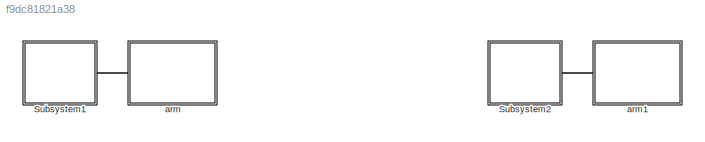
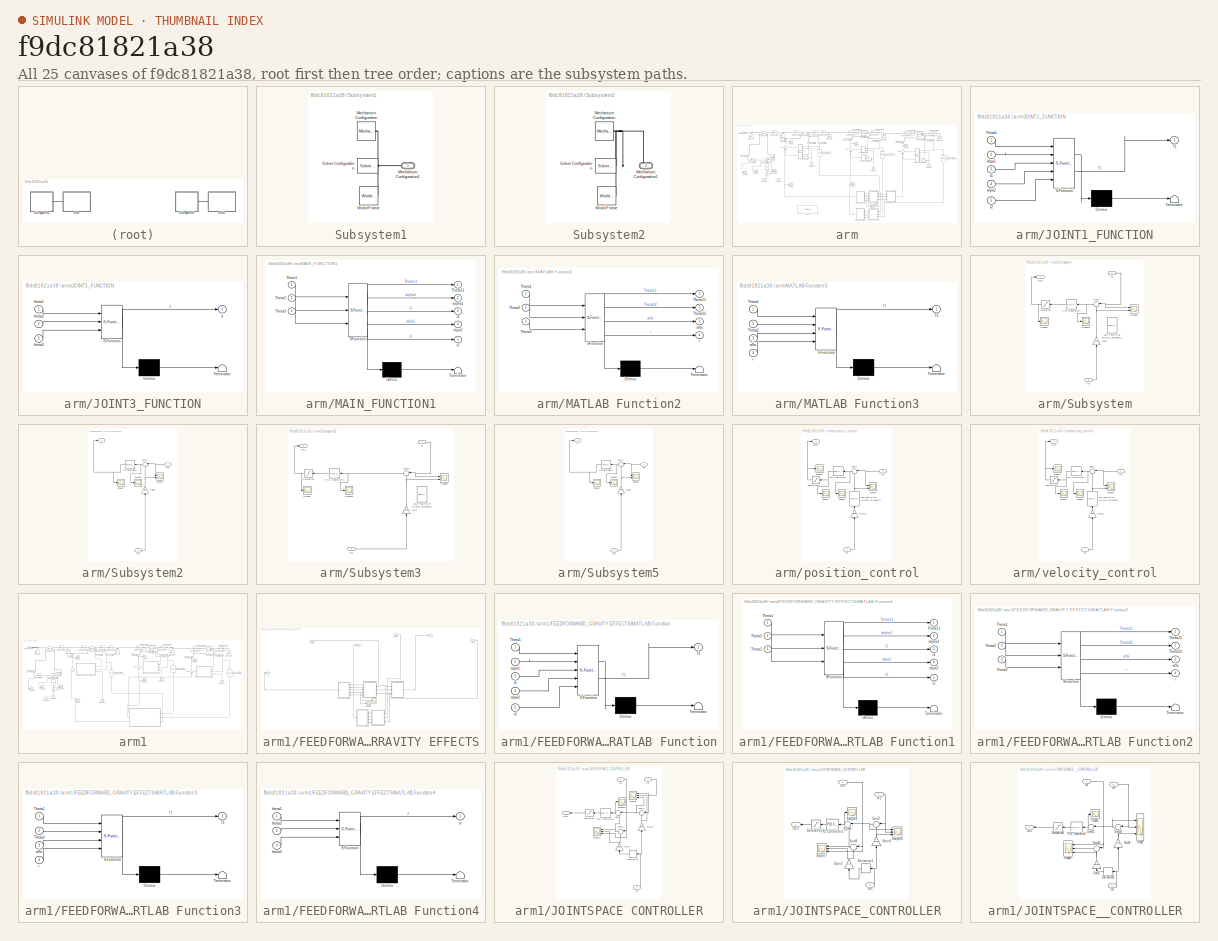
[diagram: thumbnail index - all 25 canvases of the model, root first then tree order]
MODEL slx_f9dc81821a38
KIND model
CONFIG AbsTol = auto
CONFIG EnableMultiTasking = off
CONFIG FixedStep = auto
CONFIG MaxStep = auto
CONFIG MinStep = auto
CONFIG RelTol = 1e-3
CONFIG SampleTimeConstraint = Unconstrained
CONFIG SolverName = VariableStepAuto
CONFIG StartTime = 0.0
CONFIG StopTime = 10.0
BLOCK [SubSystem] Subsystem1
  Ports = [0, 0, 0, 0, 0, 0, 1]
  RequestExecContextInheritance = off
BLOCK [Reference] Subsystem1/Mechanism Configuration  REF=sm_lib/Utilities/Mechanism
Configuration
  Ports = [0, 0, 0, 0, 0, 0, 1]
  SourceBlock = sm_lib/Utilities/Mechanism\nConfiguration
  SourceProductBaseCode = MS
  SourceType = Mechanism\nConfiguration
BLOCK [PMIOPort] Subsystem1/Mechanism Configuration1
  Side = Right
BLOCK [Reference] Subsystem1/Solver Configuration  REF=nesl_utility/Solver
Configuration
  Ports = [0, 0, 0, 0, 0, 0, 1]
  SourceBlock = nesl_utility/Solver\nConfiguration
  SourceProductBaseCode = SS
  SourceType = Solver\nConfiguration
BLOCK [Reference] Subsystem1/World Frame  REF=sm_lib/Frames and
Transforms/World Frame
  Ports = [0, 0, 0, 0, 0, 0, 1]
  SourceBlock = sm_lib/Frames and\nTransforms/World Frame
  SourceProductBaseCode = MS
  SourceType = World Frame
BLOCK [SubSystem] Subsystem2
  Commented = on
  Ports = [0, 0, 0, 0, 0, 0, 1]
  RequestExecContextInheritance = off
BLOCK [Reference] Subsystem2/Mechanism Configuration  REF=sm_lib/Utilities/Mechanism
Configuration
  Ports = [0, 0, 0, 0, 0, 0, 1]
  SourceBlock = sm_lib/Utilities/Mechanism\nConfiguration
  SourceProductBaseCode = MS
  SourceType = Mechanism\nConfiguration
BLOCK [PMIOPort] Subsystem2/Mechanism Configuration1
  Side = Right
BLOCK [Reference] Subsystem2/Solver Configuration  REF=nesl_utility/Solver
Configuration
  Ports = [0, 0, 0, 0, 0, 0, 1]
  SourceBlock = nesl_utility/Solver\nConfiguration
  SourceProductBaseCode = SS
  SourceType = Solver\nConfiguration
BLOCK [Reference] Subsystem2/World Frame  REF=sm_lib/Frames and
Transforms/World Frame
  Ports = [0, 0, 0, 0, 0, 0, 1]
  SourceBlock = sm_lib/Frames and\nTransforms/World Frame
  SourceProductBaseCode = MS
  SourceType = World Frame
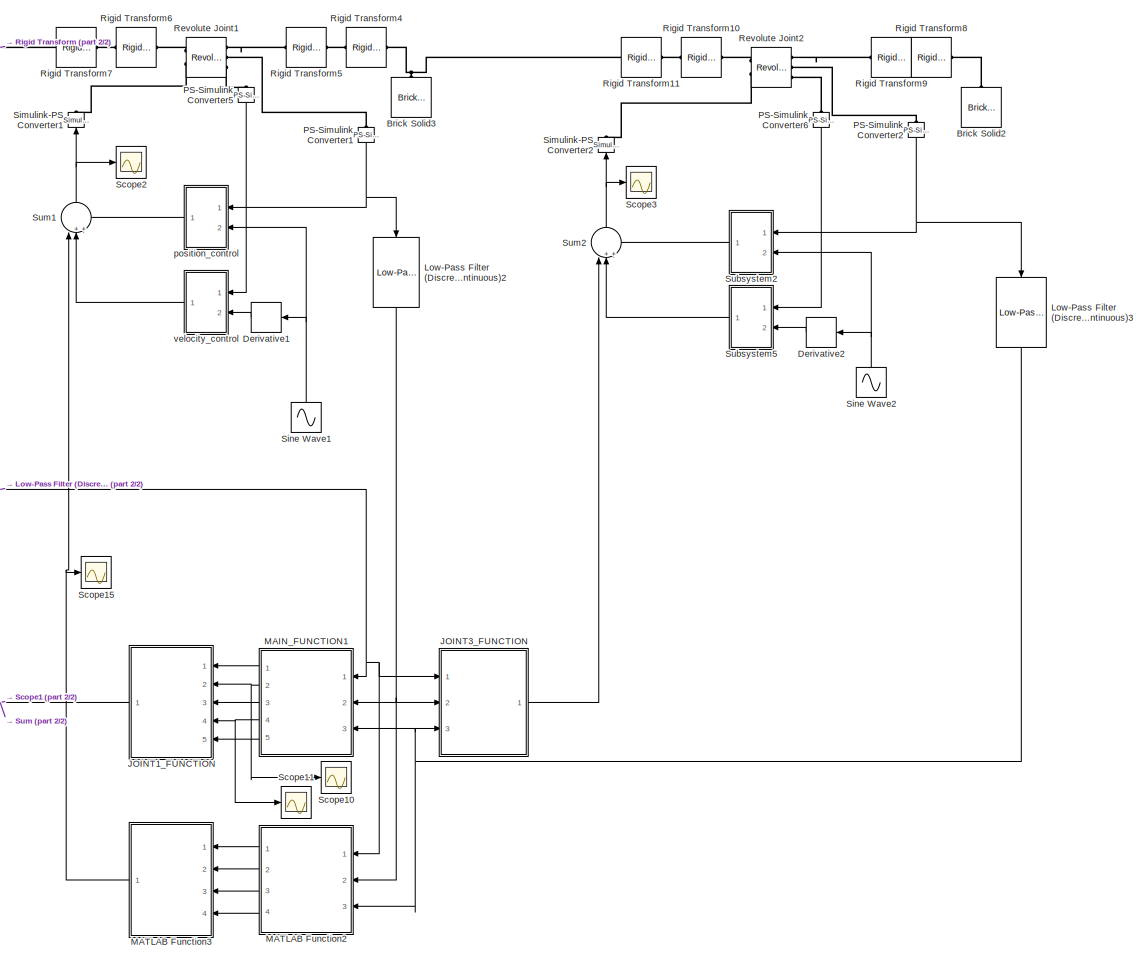
[diagram: arm - part 1/2, right side, full height]
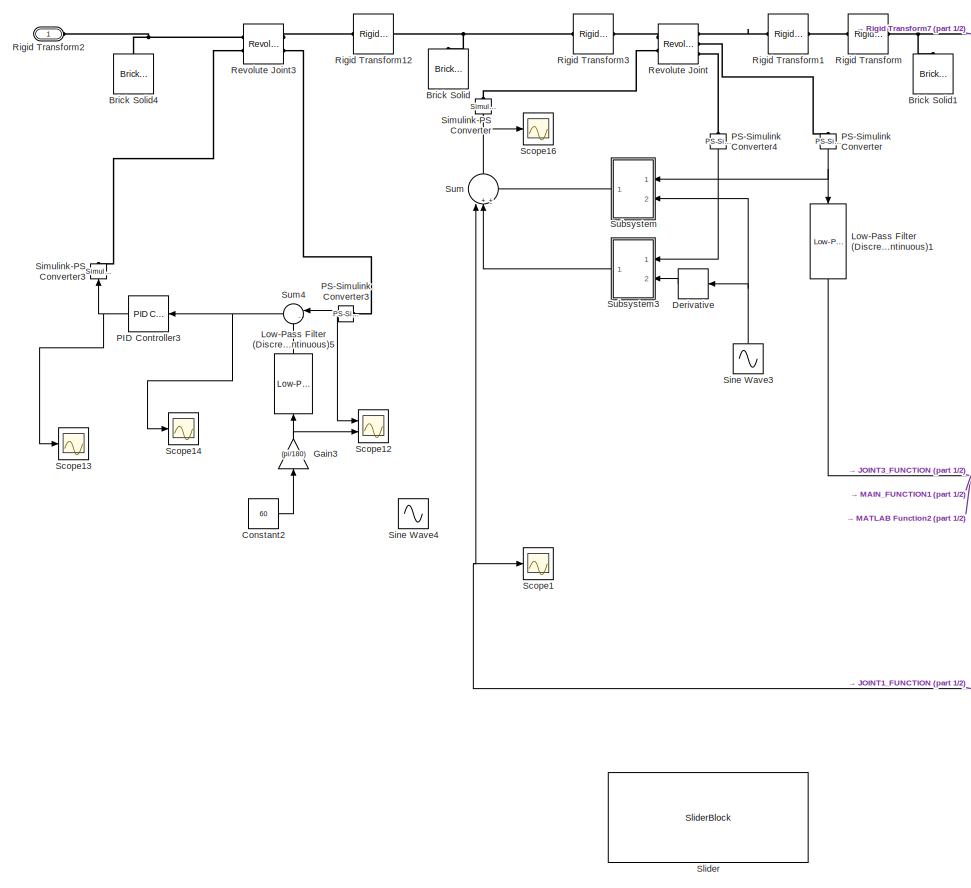
[diagram: arm - part 2/2, left side, full height]
BLOCK [SubSystem] arm
  Ports = [0, 0, 0, 0, 0, 1]
  RequestExecContextInheritance = off
BLOCK [Reference] arm/Brick Solid  REF=sm_lib/Body Elements/Brick Solid
  NameLocation = right
  Ports = [0, 0, 0, 0, 0, 0, 1]
  SourceBlock = sm_lib/Body Elements/Brick Solid
  SourceProductBaseCode = MS
  SourceType = Brick Solid
BLOCK [Reference] arm/Brick Solid1  REF=sm_lib/Body Elements/Brick Solid
  NameLocation = right
  Ports = [0, 0, 0, 0, 0, 0, 1]
  SourceBlock = sm_lib/Body Elements/Brick Solid
  SourceProductBaseCode = MS
  SourceType = Brick Solid
BLOCK [Reference] arm/Brick Solid2  REF=sm_lib/Body Elements/Brick Solid
  NameLocation = right
  Ports = [0, 0, 0, 0, 0, 0, 1]
  SourceBlock = sm_lib/Body Elements/Brick Solid
  SourceProductBaseCode = MS
  SourceType = Brick Solid
BLOCK [Reference] arm/Brick Solid3  REF=sm_lib/Body Elements/Brick Solid
  NameLocation = right
  Ports = [0, 0, 0, 0, 0, 0, 1]
  SourceBlock = sm_lib/Body Elements/Brick Solid
  SourceProductBaseCode = MS
  SourceType = Brick Solid
BLOCK [Reference] arm/Brick Solid4  REF=sm_lib/Body Elements/Brick Solid
  NameLocation = right
  Ports = [0, 0, 0, 0, 0, 0, 1]
  SourceBlock = sm_lib/Body Elements/Brick Solid
  SourceProductBaseCode = MS
  SourceType = Brick Solid
BLOCK [Constant] arm/Constant2
  Value = 60
BLOCK [Derivative] arm/Derivative
  NameLocation = top
BLOCK [Derivative] arm/Derivative1
  NameLocation = top
BLOCK [Derivative] arm/Derivative2
  NameLocation = top
BLOCK [Gain] arm/Gain3
  Gain = (pi/180)
  NameLocation = right
BLOCK [SubSystem] arm/JOINT1_FUNCTION
  ErrorFcn = Stateflow.Translate.translate
  NameLocation = top
  PermitHierarchicalResolution = ExplicitOnly
  Ports = [5, 1]
  RequestExecContextInheritance = off
  SFBlockType = MATLAB Function
  TreatAsAtomicUnit = on
BLOCK [Demux] arm/JOINT1_FUNCTION/ Demux 
  Outputs = 1
  Ports = [1, 1]
BLOCK [S-Function] arm/JOINT1_FUNCTION/ SFunction 
  EnableBusSupport = on
  FunctionName = sf_sfun
  PortCounts = [5 2]
  Ports = [5, 2]
  SFcnIsStateOwnerBlock = off
  SFunctionDeploymentMode = off
  Tag = Stateflow S-Function 2
BLOCK [Terminator] arm/JOINT1_FUNCTION/ Terminator 
BLOCK [Outport] arm/JOINT1_FUNCTION/T1
BLOCK [Inport] arm/JOINT1_FUNCTION/Theta1
BLOCK [Inport] arm/JOINT1_FUNCTION/alpa1
  Port = 2
BLOCK [Inport] arm/JOINT1_FUNCTION/alpa2
  Port = 4
BLOCK [Inport] arm/JOINT1_FUNCTION/r1
  Port = 3
BLOCK [Inport] arm/JOINT1_FUNCTION/r2
  Port = 5
BLOCK [SubSystem] arm/JOINT3_FUNCTION
  ErrorFcn = Stateflow.Translate.translate
  PermitHierarchicalResolution = ExplicitOnly
  Ports = [3, 1]
  RequestExecContextInheritance = off
  SFBlockType = MATLAB Function
  TreatAsAtomicUnit = on
BLOCK [Demux] arm/JOINT3_FUNCTION/ Demux 
  Outputs = 1
  Ports = [1, 1]
BLOCK [S-Function] arm/JOINT3_FUNCTION/ SFunction 
  EnableBusSupport = on
  FunctionName = sf_sfun
  PortCounts = [3 2]
  Ports = [3, 2]
  SFcnIsStateOwnerBlock = off
  SFunctionDeploymentMode = off
  Tag = Stateflow S-Function 5
BLOCK [Terminator] arm/JOINT3_FUNCTION/ Terminator 
BLOCK [Inport] arm/JOINT3_FUNCTION/theta1
BLOCK [Inport] arm/JOINT3_FUNCTION/theta2
  Port = 2
BLOCK [Inport] arm/JOINT3_FUNCTION/theta3
  Port = 3
BLOCK [Outport] arm/JOINT3_FUNCTION/y
BLOCK [Reference] arm/Low-Pass Filter (Discrete or Continuous)1  REF=eeGeneralControl/Low-Pass Filter
(Discrete or Continuous)
  NameLocation = left
  Ports = [1, 1]
  SourceBlock = eeGeneralControl/Low-Pass Filter\n(Discrete or Continuous)
  SourceProductBaseCode = PS
  SourceType = Low-Pass Filter (Discrete or Continuous)
BLOCK [Reference] arm/Low-Pass Filter (Discrete or Continuous)2  REF=eeGeneralControl/Low-Pass Filter
(Discrete or Continuous)
  NameLocation = left
  Ports = [1, 1]
  SourceBlock = eeGeneralControl/Low-Pass Filter\n(Discrete or Continuous)
  SourceProductBaseCode = PS
  SourceType = Low-Pass Filter (Discrete or Continuous)
BLOCK [Reference] arm/Low-Pass Filter (Discrete or Continuous)3  REF=eeGeneralControl/Low-Pass Filter
(Discrete or Continuous)
  NameLocation = left
  Ports = [1, 1]
  SourceBlock = eeGeneralControl/Low-Pass Filter\n(Discrete or Continuous)
  SourceProductBaseCode = PS
  SourceType = Low-Pass Filter (Discrete or Continuous)
BLOCK [Reference] arm/Low-Pass Filter (Discrete or Continuous)5  REF=eeGeneralControl/Low-Pass Filter
(Discrete or Continuous)
  NameLocation = right
  Ports = [1, 1]
  SourceBlock = eeGeneralControl/Low-Pass Filter\n(Discrete or Continuous)
  SourceProductBaseCode = PS
  SourceType = Low-Pass Filter (Discrete or Continuous)
BLOCK [SubSystem] arm/MAIN_FUNCTION1
  ErrorFcn = Stateflow.Translate.translate
  NameLocation = top
  PermitHierarchicalResolution = ExplicitOnly
  Ports = [3, 5]
  RequestExecContextInheritance = off
  SFBlockType = MATLAB Function
  TreatAsAtomicUnit = on
BLOCK [Demux] arm/MAIN_FUNCTION1/ Demux 
  Outputs = 1
  Ports = [1, 1]
BLOCK [S-Function] arm/MAIN_FUNCTION1/ SFunction 
  EnableBusSupport = on
  FunctionName = sf_sfun
  PortCounts = [3 6]
  Ports = [3, 6]
  SFcnIsStateOwnerBlock = off
  SFunctionDeploymentMode = off
  Tag = Stateflow S-Function 1
BLOCK [Terminator] arm/MAIN_FUNCTION1/ Terminator 
BLOCK [Inport] arm/MAIN_FUNCTION1/Theta1
BLOCK [Outport] arm/MAIN_FUNCTION1/Theta11
BLOCK [Inport] arm/MAIN_FUNCTION1/Theta2
  Port = 2
BLOCK [Inport] arm/MAIN_FUNCTION1/Theta3
  Port = 3
BLOCK [Outport] arm/MAIN_FUNCTION1/alpa2
  Port = 4
BLOCK [Outport] arm/MAIN_FUNCTION1/alpha1
  Port = 2
BLOCK [Outport] arm/MAIN_FUNCTION1/r1
  Port = 3
BLOCK [Outport] arm/MAIN_FUNCTION1/r2
  Port = 5
BLOCK [SubSystem] arm/MATLAB Function2
  ErrorFcn = Stateflow.Translate.translate
  NameLocation = top
  PermitHierarchicalResolution = ExplicitOnly
  Ports = [3, 4]
  RequestExecContextInheritance = off
  SFBlockType = MATLAB Function
  TreatAsAtomicUnit = on
BLOCK [Demux] arm/MATLAB Function2/ Demux 
  Outputs = 1
  Ports = [1, 1]
BLOCK [S-Function] arm/MATLAB Function2/ SFunction 
  EnableBusSupport = on
  FunctionName = sf_sfun
  PortCounts = [3 5]
  Ports = [3, 5]
  SFcnIsStateOwnerBlock = off
  SFunctionDeploymentMode = off
  Tag = Stateflow S-Function 3
BLOCK [Terminator] arm/MATLAB Function2/ Terminator 
BLOCK [Inport] arm/MATLAB Function2/Theta1
BLOCK [Outport] arm/MATLAB Function2/Theta11
BLOCK [Inport] arm/MATLAB Function2/Theta2
  Port = 2
BLOCK [Outport] arm/MATLAB Function2/Theta22
  Port = 2
BLOCK [Inport] arm/MATLAB Function2/Theta3
  Port = 3
BLOCK [Outport] arm/MATLAB Function2/alfa
  Port = 3
BLOCK [Outport] arm/MATLAB Function2/r
  Port = 4
BLOCK [SubSystem] arm/MATLAB Function3
  ErrorFcn = Stateflow.Translate.translate
  NameLocation = top
  PermitHierarchicalResolution = ExplicitOnly
  Ports = [4, 1]
  RequestExecContextInheritance = off
  SFBlockType = MATLAB Function
  TreatAsAtomicUnit = on
BLOCK [Demux] arm/MATLAB Function3/ Demux 
  Outputs = 1
  Ports = [1, 1]
BLOCK [S-Function] arm/MATLAB Function3/ SFunction 
  EnableBusSupport = on
  FunctionName = sf_sfun
  PortCounts = [4 2]
  Ports = [4, 2]
  SFcnIsStateOwnerBlock = off
  SFunctionDeploymentMode = off
  Tag = Stateflow S-Function 4
BLOCK [Terminator] arm/MATLAB Function3/ Terminator 
BLOCK [Outport] arm/MATLAB Function3/T1
BLOCK [Inport] arm/MATLAB Function3/Theta1
BLOCK [Inport] arm/MATLAB Function3/Theta2
  Port = 2
BLOCK [Inport] arm/MATLAB Function3/alfa
  Port = 3
BLOCK [Inport] arm/MATLAB Function3/r
  Port = 4
BLOCK [Reference] arm/PID Controller3  REF=pid_lib/PID Controller
  NameLocation = top
  Ports = [1, 1]
  SourceBlock = pid_lib/PID Controller
  SourceProductBaseCode = SL
  SourceType = PID 1dof
BLOCK [Reference] arm/PS-Simulink Converter  REF=nesl_utility/PS-Simulink
Converter
  NameLocation = left
  Ports = [0, 1, 0, 0, 0, 1]
  SourceBlock = nesl_utility/PS-Simulink\nConverter
  SourceProductBaseCode = SS
  SourceType = PS-Simulink\nConverter
BLOCK [Reference] arm/PS-Simulink Converter1  REF=nesl_utility/PS-Simulink
Converter
  NameLocation = left
  Ports = [0, 1, 0, 0, 0, 1]
  SourceBlock = nesl_utility/PS-Simulink\nConverter
  SourceProductBaseCode = SS
  SourceType = PS-Simulink\nConverter
BLOCK [Reference] arm/PS-Simulink Converter2  REF=nesl_utility/PS-Simulink
Converter
  NameLocation = left
  Ports = [0, 1, 0, 0, 0, 1]
  SourceBlock = nesl_utility/PS-Simulink\nConverter
  SourceProductBaseCode = SS
  SourceType = PS-Simulink\nConverter
BLOCK [Reference] arm/PS-Simulink Converter3  REF=nesl_utility/PS-Simulink
Converter
  NameLocation = top
  Ports = [0, 1, 0, 0, 0, 1]
  SourceBlock = nesl_utility/PS-Simulink\nConverter
  SourceProductBaseCode = SS
  SourceType = PS-Simulink\nConverter
BLOCK [Reference] arm/PS-Simulink Converter4  REF=nesl_utility/PS-Simulink
Converter
  NameLocation = left
  Ports = [0, 1, 0, 0, 0, 1]
  SourceBlock = nesl_utility/PS-Simulink\nConverter
  SourceProductBaseCode = SS
  SourceType = PS-Simulink\nConverter
BLOCK [Reference] arm/PS-Simulink Converter5  REF=nesl_utility/PS-Simulink
Converter
  NameLocation = left
  Ports = [0, 1, 0, 0, 0, 1]
  SourceBlock = nesl_utility/PS-Simulink\nConverter
  SourceProductBaseCode = SS
  SourceType = PS-Simulink\nConverter
BLOCK [Reference] arm/PS-Simulink Converter6  REF=nesl_utility/PS-Simulink
Converter
  NameLocation = left
  Ports = [0, 1, 0, 0, 0, 1]
  SourceBlock = nesl_utility/PS-Simulink\nConverter
  SourceProductBaseCode = SS
  SourceType = PS-Simulink\nConverter
BLOCK [Reference] arm/Revolute Joint  REF=sm_lib/Joints/Revolute Joint
  Ports = [0, 0, 0, 0, 0, 2, 3]
  SourceBlock = sm_lib/Joints/Revolute Joint
  SourceProductBaseCode = MS
  SourceType = Revolute Joint
BLOCK [Reference] arm/Revolute Joint1  REF=sm_lib/Joints/Revolute Joint
  Ports = [0, 0, 0, 0, 0, 2, 3]
  SourceBlock = sm_lib/Joints/Revolute Joint
  SourceProductBaseCode = MS
  SourceType = Revolute Joint
BLOCK [Reference] arm/Revolute Joint2  REF=sm_lib/Joints/Revolute Joint
  Ports = [0, 0, 0, 0, 0, 2, 3]
  SourceBlock = sm_lib/Joints/Revolute Joint
  SourceProductBaseCode = MS
  SourceType = Revolute Joint
BLOCK [Reference] arm/Revolute Joint3  REF=sm_lib/Joints/Revolute Joint
  Ports = [0, 0, 0, 0, 0, 2, 2]
  SourceBlock = sm_lib/Joints/Revolute Joint
  SourceProductBaseCode = MS
  SourceType = Revolute Joint
BLOCK [Reference] arm/Rigid Transform  REF=sm_lib/Frames and
Transforms/Rigid
Transform
  Ports = [0, 0, 0, 0, 0, 1, 1]
  SourceBlock = sm_lib/Frames and\nTransforms/Rigid\nTransform
  SourceProductBaseCode = MS
  SourceType = Rigid\nTransform
BLOCK [Reference] arm/Rigid Transform1  REF=sm_lib/Frames and
Transforms/Rigid
Transform
  Ports = [0, 0, 0, 0, 0, 1, 1]
  SourceBlock = sm_lib/Frames and\nTransforms/Rigid\nTransform
  SourceProductBaseCode = MS
  SourceType = Rigid\nTransform
BLOCK [Reference] arm/Rigid Transform10  REF=sm_lib/Frames and
Transforms/Rigid
Transform
  Ports = [0, 0, 0, 0, 0, 1, 1]
  SourceBlock = sm_lib/Frames and\nTransforms/Rigid\nTransform
  SourceProductBaseCode = MS
  SourceType = Rigid\nTransform
BLOCK [Reference] arm/Rigid Transform11  REF=sm_lib/Frames and
Transforms/Rigid
Transform
  Ports = [0, 0, 0, 0, 0, 1, 1]
  SourceBlock = sm_lib/Frames and\nTransforms/Rigid\nTransform
  SourceProductBaseCode = MS
  SourceType = Rigid\nTransform
BLOCK [Reference] arm/Rigid Transform12  REF=sm_lib/Frames and
Transforms/Rigid
Transform
  Ports = [0, 0, 0, 0, 0, 1, 1]
  SourceBlock = sm_lib/Frames and\nTransforms/Rigid\nTransform
  SourceProductBaseCode = MS
  SourceType = Rigid\nTransform
BLOCK [PMIOPort] arm/Rigid Transform2
  Side = Left
BLOCK [Reference] arm/Rigid Transform3  REF=sm_lib/Frames and
Transforms/Rigid
Transform
  Ports = [0, 0, 0, 0, 0, 1, 1]
  SourceBlock = sm_lib/Frames and\nTransforms/Rigid\nTransform
  SourceProductBaseCode = MS
  SourceType = Rigid\nTransform
BLOCK [Reference] arm/Rigid Transform4  REF=sm_lib/Frames and
Transforms/Rigid
Transform
  Ports = [0, 0, 0, 0, 0, 1, 1]
  SourceBlock = sm_lib/Frames and\nTransforms/Rigid\nTransform
  SourceProductBaseCode = MS
  SourceType = Rigid\nTransform
BLOCK [Reference] arm/Rigid Transform5  REF=sm_lib/Frames and
Transforms/Rigid
Transform
  Ports = [0, 0, 0, 0, 0, 1, 1]
  SourceBlock = sm_lib/Frames and\nTransforms/Rigid\nTransform
  SourceProductBaseCode = MS
  SourceType = Rigid\nTransform
BLOCK [Reference] arm/Rigid Transform6  REF=sm_lib/Frames and
Transforms/Rigid
Transform
  Ports = [0, 0, 0, 0, 0, 1, 1]
  SourceBlock = sm_lib/Frames and\nTransforms/Rigid\nTransform
  SourceProductBaseCode = MS
  SourceType = Rigid\nTransform
BLOCK [Reference] arm/Rigid Transform7  REF=sm_lib/Frames and
Transforms/Rigid
Transform
  Ports = [0, 0, 0, 0, 0, 1, 1]
  SourceBlock = sm_lib/Frames and\nTransforms/Rigid\nTransform
  SourceProductBaseCode = MS
  SourceType = Rigid\nTransform
BLOCK [Reference] arm/Rigid Transform8  REF=sm_lib/Frames and
Transforms/Rigid
Transform
  Ports = [0, 0, 0, 0, 0, 1, 1]
  SourceBlock = sm_lib/Frames and\nTransforms/Rigid\nTransform
  SourceProductBaseCode = MS
  SourceType = Rigid\nTransform
BLOCK [Reference] arm/Rigid Transform9  REF=sm_lib/Frames and
Transforms/Rigid
Transform
  Ports = [0, 0, 0, 0, 0, 1, 1]
  SourceBlock = sm_lib/Frames and\nTransforms/Rigid\nTransform
  SourceProductBaseCode = MS
  SourceType = Rigid\nTransform
BLOCK [Scope] arm/Scope1
  Floating = off
  NumInputPorts = 1
  Ports = [1]
  ScopeSpecificationString = Simulink.scopes.TimeScopeBlockCfg('CurrentConfiguration', extmgr.ConfigurationSet(extmgr.Configuration('Core','General UI',true),extmgr.Configuration('Core','Source UI',true),extmgr.Configuration('Sources','WiredSimulink',true,'DataLoggingVariableName','ScopeData1'),extmgr.Configuration('Visuals','Time Domain',true,'SerializedDisplays',{struct('MinYLimReal','-97.78907','MaxYLimReal','122.15234','Y...<+1461ch>
BLOCK [Scope] arm/Scope10
  Floating = off
  NumInputPorts = 1
  Ports = [1]
  ScopeSpecificationString = Simulink.scopes.TimeScopeBlockCfg('CurrentConfiguration', extmgr.ConfigurationSet(extmgr.Configuration('Core','General UI',true),extmgr.Configuration('Core','Source UI',true),extmgr.Configuration('Sources','WiredSimulink',true,'DataLoggingVariableName','ScopeData3'),extmgr.Configuration('Visuals','Time Domain',true,'SerializedDisplays',{struct('MinYLimReal','-0.08716','MaxYLimReal','0.78411','YLab...<+1413ch>
BLOCK [Scope] arm/Scope11
  Floating = off
  NumInputPorts = 1
  Ports = [1]
  ScopeSpecificationString = Simulink.scopes.TimeScopeBlockCfg('CurrentConfiguration', extmgr.ConfigurationSet(extmgr.Configuration('Core','General UI',true),extmgr.Configuration('Core','Source UI',true),extmgr.Configuration('Sources','WiredSimulink',true,'DataLoggingVariableName','ScopeData4'),extmgr.Configuration('Visuals','Time Domain',true,'SerializedDisplays',{struct('MinYLimReal','-0.10489','MaxYLimReal','0.94401','YLab...<+1412ch>
BLOCK [Scope] arm/Scope12
  Floating = off
  NumInputPorts = 2
  Ports = [2]
  ScopeSpecificationString = Simulink.scopes.TimeScopeBlockCfg('CurrentConfiguration', extmgr.ConfigurationSet(extmgr.Configuration('Core','General UI',true),extmgr.Configuration('Core','Source UI',true),extmgr.Configuration('Sources','WiredSimulink',true,'DataLoggingVariableName','ScopeData2'),extmgr.Configuration('Visuals','Time Domain',true,'SerializedDisplays',{struct('MinYLimReal','-2.43164','MaxYLimReal','2.24908','YLab...<+1470ch>
BLOCK [Scope] arm/Scope13
  Floating = off
  NumInputPorts = 1
  Ports = [1]
  ScopeSpecificationString = Simulink.scopes.TimeScopeBlockCfg('CurrentConfiguration', extmgr.ConfigurationSet(extmgr.Configuration('Core','General UI',true),extmgr.Configuration('Core','Source UI',true),extmgr.Configuration('Sources','WiredSimulink',true,'DataLoggingVariableName','ScopeData3'),extmgr.Configuration('Visuals','Time Domain',true,'SerializedDisplays',{struct('MinYLimReal','-105.42906','MaxYLimReal','1824.76918',...<+1442ch>
BLOCK [Scope] arm/Scope14
  Floating = off
  NumInputPorts = 1
  Ports = [1]
  ScopeSpecificationString = Simulink.scopes.TimeScopeBlockCfg('CurrentConfiguration', extmgr.ConfigurationSet(extmgr.Configuration('Core','General UI',true),extmgr.Configuration('Core','Source UI',true),extmgr.Configuration('Sources','WiredSimulink',true,'DataLoggingVariableName','ScopeData4'),extmgr.Configuration('Visuals','Time Domain',true,'SerializedDisplays',{struct('MinYLimReal','-0.71157','MaxYLimReal','0.46619','YLab...<+1396ch>
BLOCK [Scope] arm/Scope15
  Floating = off
  NumInputPorts = 1
  Ports = [1]
  ScopeSpecificationString = Simulink.scopes.TimeScopeBlockCfg('CurrentConfiguration', extmgr.ConfigurationSet(extmgr.Configuration('Core','General UI',true),extmgr.Configuration('Core','Source UI',true),extmgr.Configuration('Sources','WiredSimulink',true,'DataLoggingVariableName','ScopeData5'),extmgr.Configuration('Visuals','Time Domain',true,'SerializedDisplays',{struct('MinYLimReal','-84.16932','MaxYLimReal','58.59398','YL...<+1431ch>
BLOCK [Scope] arm/Scope16
  Floating = off
  NumInputPorts = 1
  Ports = [1]
  ScopeSpecificationString = Simulink.scopes.TimeScopeBlockCfg('CurrentConfiguration', extmgr.ConfigurationSet(extmgr.Configuration('Core','General UI',true),extmgr.Configuration('Core','Source UI',true),extmgr.Configuration('Sources','WiredSimulink',true,'DataLoggingVariableName','ScopeData2'),extmgr.Configuration('Visuals','Time Domain',true,'SerializedDisplays',{struct('MinYLimReal','-55.10704','MaxYLimReal','94.41094','YL...<+1416ch>
BLOCK [Scope] arm/Scope2
  Floating = off
  NumInputPorts = 1
  Ports = [1]
  ScopeSpecificationString = Simulink.scopes.TimeScopeBlockCfg('CurrentConfiguration', extmgr.ConfigurationSet(extmgr.Configuration('Core','General UI',true),extmgr.Configuration('Core','Source UI',true),extmgr.Configuration('Sources','WiredSimulink',true,'DataLoggingVariableName','ScopeData1'),extmgr.Configuration('Visuals','Time Domain',true,'SerializedDisplays',{struct('MinYLimReal','-19.29694','MaxYLimReal','21.51342','YL...<+1417ch>
BLOCK [Scope] arm/Scope3
  Floating = off
  NumInputPorts = 1
  Ports = [1]
  ScopeSpecificationString = Simulink.scopes.TimeScopeBlockCfg('CurrentConfiguration', extmgr.ConfigurationSet(extmgr.Configuration('Core','General UI',true),extmgr.Configuration('Core','Source UI',true),extmgr.Configuration('Sources','WiredSimulink',true,'DataLoggingVariableName','ScopeData2'),extmgr.Configuration('Visuals','Time Domain',true,'SerializedDisplays',{struct('MinYLimReal','-46.30671','MaxYLimReal','146.9352','YL...<+1417ch>
BLOCK [Reference] arm/Simulink-PS Converter  REF=nesl_utility/Simulink-PS
Converter
  NameLocation = right
  Ports = [1, 0, 0, 0, 0, 0, 1]
  SourceBlock = nesl_utility/Simulink-PS\nConverter
  SourceProductBaseCode = SS
  SourceType = Simulink-PS\nConverter
BLOCK [Reference] arm/Simulink-PS Converter1  REF=nesl_utility/Simulink-PS
Converter
  NameLocation = right
  Ports = [1, 0, 0, 0, 0, 0, 1]
  SourceBlock = nesl_utility/Simulink-PS\nConverter
  SourceProductBaseCode = SS
  SourceType = Simulink-PS\nConverter
BLOCK [Reference] arm/Simulink-PS Converter2  REF=nesl_utility/Simulink-PS
Converter
  NameLocation = right
  Ports = [1, 0, 0, 0, 0, 0, 1]
  SourceBlock = nesl_utility/Simulink-PS\nConverter
  SourceProductBaseCode = SS
  SourceType = Simulink-PS\nConverter
BLOCK [Reference] arm/Simulink-PS Converter3  REF=nesl_utility/Simulink-PS
Converter
  NameLocation = right
  Ports = [1, 0, 0, 0, 0, 0, 1]
  SourceBlock = nesl_utility/Simulink-PS\nConverter
  SourceProductBaseCode = SS
  SourceType = Simulink-PS\nConverter
BLOCK [Sin] arm/Sine Wave1
  Amplitude = 60
  Frequency = .1*6*pi
  NameLocation = right
  Phase = 10
  Ports = [0, 1]
  SampleTime = 0
BLOCK [Sin] arm/Sine Wave2
  Amplitude = 90
  Frequency = .1*3*pi
  NameLocation = right
  Phase = 60
  Ports = [0, 1]
  SampleTime = 0
BLOCK [Sin] arm/Sine Wave3
  Amplitude = 60
  Frequency = .1*2*pi
  NameLocation = right
  Ports = [0, 1]
  SampleTime = 0
BLOCK [Sin] arm/Sine Wave4
  Amplitude = 20
  Frequency = .1*4*pi
  NameLocation = right
  Phase = 10
  Ports = [0, 1]
  SampleTime = 0
BLOCK [SliderBlock] arm/Slider
  ScaleMax = 180
  ScaleMin = -180
BLOCK [SubSystem] arm/Subsystem
  NameLocation = top
  Ports = [2, 1]
  RequestExecContextInheritance = off
BLOCK [Gain] arm/Subsystem/Gain
  Gain = (pi/180)
  NameLocation = right
BLOCK [Inport] arm/Subsystem/In1
BLOCK [Inport] arm/Subsystem/In2
  Port = 2
BLOCK [Reference] arm/Subsystem/Low-Pass Filter (Discrete or Continuous)1  REF=eeGeneralControl/Low-Pass Filter
(Discrete or Continuous)
  NameLocation = right
  Ports = [1, 1]
  SourceBlock = eeGeneralControl/Low-Pass Filter\n(Discrete or Continuous)
  SourceProductBaseCode = PS
  SourceType = Low-Pass Filter (Discrete or Continuous)
BLOCK [Outport] arm/Subsystem/Out1
BLOCK [Reference] arm/Subsystem/PID Controller4  REF=pid_lib/PID Controller
  NameLocation = top
  Ports = [1, 1]
  SourceBlock = pid_lib/PID Controller
  SourceProductBaseCode = SL
  SourceType = PID 1dof
BLOCK [Saturate] arm/Subsystem/Saturation
  LowerLimit = -50
  NameLocation = top
  UpperLimit = 50
BLOCK [Scope] arm/Subsystem/Scope18
  Floating = off
  NumInputPorts = 1
  Ports = [1]
  ScopeSpecificationString = Simulink.scopes.TimeScopeBlockCfg('CurrentConfiguration', extmgr.ConfigurationSet(extmgr.Configuration('Core','General UI',true),extmgr.Configuration('Core','Source UI',true),extmgr.Configuration('Sources','WiredSimulink',true,'DataLoggingVariableName','ScopeData4'),extmgr.Configuration('Visuals','Time Domain',true,'SerializedDisplays',{struct('MinYLimReal','-28.70324','MaxYLimReal','215.04775','Y...<+1421ch>
BLOCK [Scope] arm/Subsystem/Scope2
  Floating = off
  NumInputPorts = 2
  Ports = [2]
  ScopeSpecificationString = Simulink.scopes.TimeScopeBlockCfg('CurrentConfiguration', extmgr.ConfigurationSet(extmgr.Configuration('Core','General UI',true),extmgr.Configuration('Core','Source UI',true),extmgr.Configuration('Sources','WiredSimulink',true,'DataLoggingVariableName','ScopeData1'),extmgr.Configuration('Visuals','Time Domain',true,'SerializedDisplays',{struct('MinYLimReal','-1.2812','MaxYLimReal','1.88003','YLabe...<+1415ch>
BLOCK [Scope] arm/Subsystem/Scope9
  Floating = off
  NumInputPorts = 1
  Ports = [1]
  ScopeSpecificationString = Simulink.scopes.TimeScopeBlockCfg('CurrentConfiguration', extmgr.ConfigurationSet(extmgr.Configuration('Core','General UI',true),extmgr.Configuration('Core','Source UI',true),extmgr.Configuration('Sources','WiredSimulink',true,'DataLoggingVariableName','ScopeData1'),extmgr.Configuration('Visuals','Time Domain',true,'SerializedDisplays',{struct('MinYLimReal','-240.27598','MaxYLimReal','358.95421','...<+1431ch>
BLOCK [Sum] arm/Subsystem/Sum6
  Inputs = |-+
  NameLocation = top
  Ports = [2, 1]
BLOCK [SubSystem] arm/Subsystem2
  NameLocation = top
  Ports = [2, 1]
  RequestExecContextInheritance = off
BLOCK [Gain] arm/Subsystem2/Gain2
  Gain = (pi/180)
  NameLocation = right
BLOCK [Inport] arm/Subsystem2/In1
BLOCK [Inport] arm/Subsystem2/In2
  Port = 2
BLOCK [Reference] arm/Subsystem2/PID Controller2  REF=pid_lib/PID Controller
  NameLocation = top
  Ports = [1, 1]
  SourceBlock = pid_lib/PID Controller
  SourceProductBaseCode = SL
  SourceType = PID 1dof
BLOCK [Scope] arm/Subsystem2/Scope6
  Floating = off
  NumInputPorts = 2
  Ports = [2]
  ScopeSpecificationString = Simulink.scopes.TimeScopeBlockCfg('CurrentConfiguration', extmgr.ConfigurationSet(extmgr.Configuration('Core','General UI',true),extmgr.Configuration('Core','Source UI',true),extmgr.Configuration('Sources','WiredSimulink',true,'DataLoggingVariableName','ScopeData6'),extmgr.Configuration('Visuals','Time Domain',true,'SerializedDisplays',{struct('MinYLimReal','-1.98091','MaxYLimReal','2.09791','YLab...<+1401ch>
BLOCK [Scope] arm/Subsystem2/Scope7
  Floating = off
  NumInputPorts = 1
  Ports = [1]
  ScopeSpecificationString = Simulink.scopes.TimeScopeBlockCfg('CurrentConfiguration', extmgr.ConfigurationSet(extmgr.Configuration('Core','General UI',true),extmgr.Configuration('Core','Source UI',true),extmgr.Configuration('Sources','WiredSimulink',true,'DataLoggingVariableName','ScopeData7'),extmgr.Configuration('Visuals','Time Domain',true,'SerializedDisplays',{struct('MinYLimReal','-64.4437','MaxYLimReal','41.05175','YLa...<+1426ch>
BLOCK [Scope] arm/Subsystem2/Scope8
  Floating = off
  NumInputPorts = 1
  Ports = [1]
  ScopeSpecificationString = Simulink.scopes.TimeScopeBlockCfg('CurrentConfiguration', extmgr.ConfigurationSet(extmgr.Configuration('Core','General UI',true),extmgr.Configuration('Core','Source UI',true),extmgr.Configuration('Sources','WiredSimulink',true,'DataLoggingVariableName','ScopeData8'),extmgr.Configuration('Visuals','Time Domain',true,'SerializedDisplays',{struct('MinYLimReal','-1.07676','MaxYLimReal','3.22756','YLab...<+1394ch>
BLOCK [Sum] arm/Subsystem2/Sum2
  Inputs = |-+
  NameLocation = top
  Ports = [2, 1]
BLOCK [Outport] arm/Subsystem2/y
BLOCK [SubSystem] arm/Subsystem3
  NameLocation = top
  Ports = [2, 1]
  RequestExecContextInheritance = off
BLOCK [Gain] arm/Subsystem3/Gain
  Gain = (pi/180)
  NameLocation = right
BLOCK [Inport] arm/Subsystem3/In1
BLOCK [Inport] arm/Subsystem3/In2
  Port = 2
BLOCK [Reference] arm/Subsystem3/Low-Pass Filter (Discrete or Continuous)1  REF=eeGeneralControl/Low-Pass Filter
(Discrete or Continuous)
  NameLocation = right
  Ports = [1, 1]
  SourceBlock = eeGeneralControl/Low-Pass Filter\n(Discrete or Continuous)
  SourceProductBaseCode = PS
  SourceType = Low-Pass Filter (Discrete or Continuous)
BLOCK [Outport] arm/Subsystem3/Out1
BLOCK [Reference] arm/Subsystem3/PID Controller4  REF=pid_lib/PID Controller
  NameLocation = top
  Ports = [1, 1]
  SourceBlock = pid_lib/PID Controller
  SourceProductBaseCode = SL
  SourceType = PID 1dof
BLOCK [Saturate] arm/Subsystem3/Saturation
  LowerLimit = -50
  NameLocation = top
  UpperLimit = 50
BLOCK [Scope] arm/Subsystem3/Scope18
  Floating = off
  NumInputPorts = 1
  Ports = [1]
  ScopeSpecificationString = Simulink.scopes.TimeScopeBlockCfg('CurrentConfiguration', extmgr.ConfigurationSet(extmgr.Configuration('Core','General UI',true),extmgr.Configuration('Core','Source UI',true),extmgr.Configuration('Sources','WiredSimulink',true,'DataLoggingVariableName','ScopeData4'),extmgr.Configuration('Visuals','Time Domain',true,'SerializedDisplays',{struct('MinYLimReal','-1.82605','MaxYLimReal','1.16903','YLab...<+1411ch>
BLOCK [Scope] arm/Subsystem3/Scope2
  Floating = off
  NumInputPorts = 2
  Ports = [2]
  ScopeSpecificationString = Simulink.scopes.TimeScopeBlockCfg('CurrentConfiguration', extmgr.ConfigurationSet(extmgr.Configuration('Core','General UI',true),extmgr.Configuration('Core','Source UI',true),extmgr.Configuration('Sources','WiredSimulink',true,'DataLoggingVariableName','ScopeData1'),extmgr.Configuration('Visuals','Time Domain',true,'SerializedDisplays',{struct('MinYLimReal','-1.2812','MaxYLimReal','1.88003','YLabe...<+1415ch>
BLOCK [Scope] arm/Subsystem3/Scope9
  Floating = off
  NumInputPorts = 1
  Ports = [1]
  ScopeSpecificationString = Simulink.scopes.TimeScopeBlockCfg('CurrentConfiguration', extmgr.ConfigurationSet(extmgr.Configuration('Core','General UI',true),extmgr.Configuration('Core','Source UI',true),extmgr.Configuration('Sources','WiredSimulink',true,'DataLoggingVariableName','ScopeData1'),extmgr.Configuration('Visuals','Time Domain',true,'SerializedDisplays',{struct('MinYLimReal','-240.27598','MaxYLimReal','358.95421','...<+1431ch>
BLOCK [Sum] arm/Subsystem3/Sum6
  Inputs = |-+
  NameLocation = top
  Ports = [2, 1]
BLOCK [SubSystem] arm/Subsystem5
  NameLocation = top
  Ports = [2, 1]
  RequestExecContextInheritance = off
BLOCK [Gain] arm/Subsystem5/Gain2
  Gain = (pi/180)
  NameLocation = right
BLOCK [Inport] arm/Subsystem5/In1
BLOCK [Inport] arm/Subsystem5/In2
  Port = 2
BLOCK [Reference] arm/Subsystem5/PID Controller2  REF=pid_lib/PID Controller
  NameLocation = top
  Ports = [1, 1]
  SourceBlock = pid_lib/PID Controller
  SourceProductBaseCode = SL
  SourceType = PID 1dof
BLOCK [Scope] arm/Subsystem5/Scope6
  Floating = off
  NumInputPorts = 2
  Ports = [2]
  ScopeSpecificationString = Simulink.scopes.TimeScopeBlockCfg('CurrentConfiguration', extmgr.ConfigurationSet(extmgr.Configuration('Core','General UI',true),extmgr.Configuration('Core','Source UI',true),extmgr.Configuration('Sources','WiredSimulink',true,'DataLoggingVariableName','ScopeData6'),extmgr.Configuration('Visuals','Time Domain',true,'SerializedDisplays',{struct('MinYLimReal','-12.56105','MaxYLimReal','6.93346','YLa...<+1405ch>
BLOCK [Scope] arm/Subsystem5/Scope7
  Floating = off
  NumInputPorts = 1
  Ports = [1]
  ScopeSpecificationString = Simulink.scopes.TimeScopeBlockCfg('CurrentConfiguration', extmgr.ConfigurationSet(extmgr.Configuration('Core','General UI',true),extmgr.Configuration('Core','Source UI',true),extmgr.Configuration('Sources','WiredSimulink',true,'DataLoggingVariableName','ScopeData7'),extmgr.Configuration('Visuals','Time Domain',true,'SerializedDisplays',{struct('MinYLimReal','-64.4437','MaxYLimReal','41.05175','YLa...<+1426ch>
BLOCK [Scope] arm/Subsystem5/Scope8
  Floating = off
  NumInputPorts = 1
  Ports = [1]
  ScopeSpecificationString = Simulink.scopes.TimeScopeBlockCfg('CurrentConfiguration', extmgr.ConfigurationSet(extmgr.Configuration('Core','General UI',true),extmgr.Configuration('Core','Source UI',true),extmgr.Configuration('Sources','WiredSimulink',true,'DataLoggingVariableName','ScopeData8'),extmgr.Configuration('Visuals','Time Domain',true,'SerializedDisplays',{struct('MinYLimReal','-7.44498','MaxYLimReal','6.29881','YLab...<+1394ch>
BLOCK [Sum] arm/Subsystem5/Sum2
  Inputs = |-+
  NameLocation = top
  Ports = [2, 1]
BLOCK [Outport] arm/Subsystem5/y
BLOCK [Sum] arm/Sum
  Inputs = |+++
  NameLocation = right
  Ports = [3, 1]
BLOCK [Sum] arm/Sum1
  Inputs = |+++
  NameLocation = right
  Ports = [3, 1]
BLOCK [Sum] arm/Sum2
  Inputs = |+++
  NameLocation = right
  Ports = [3, 1]
BLOCK [Sum] arm/Sum4
  Inputs = |-+
  NameLocation = top
  Ports = [2, 1]
BLOCK [SubSystem] arm/position_control
  NameLocation = top
  Ports = [2, 1]
  RequestExecContextInheritance = off
BLOCK [Gain] arm/position_control/Gain1
  Gain = (pi/180)
  NameLocation = right
BLOCK [Inport] arm/position_control/In1
BLOCK [Inport] arm/position_control/In2
  Port = 2
BLOCK [Reference] arm/position_control/Low-Pass Filter (Discrete or Continuous)7  REF=eeGeneralControl/Low-Pass Filter
(Discrete or Continuous)
  NameLocation = right
  Ports = [1, 1]
  SourceBlock = eeGeneralControl/Low-Pass Filter\n(Discrete or Continuous)
  SourceProductBaseCode = PS
  SourceType = Low-Pass Filter (Discrete or Continuous)
BLOCK [Outport] arm/position_control/Out1
BLOCK [Reference] arm/position_control/PID Controller1  REF=pid_lib/PID Controller
  NameLocation = top
  Ports = [1, 1]
  SourceBlock = pid_lib/PID Controller
  SourceProductBaseCode = SL
  SourceType = PID 1dof
BLOCK [Saturate] arm/position_control/Saturation1
  LowerLimit = -50
  NameLocation = top
  UpperLimit = 50
BLOCK [Scope] arm/position_control/Scope17
  Floating = off
  NumInputPorts = 1
  Ports = [1]
  ScopeSpecificationString = Simulink.scopes.TimeScopeBlockCfg('CurrentConfiguration', extmgr.ConfigurationSet(extmgr.Configuration('Core','General UI',true),extmgr.Configuration('Core','Source UI',true),extmgr.Configuration('Sources','WiredSimulink',true,'DataLoggingVariableName','ScopeData3'),extmgr.Configuration('Visuals','Time Domain',true,'SerializedDisplays',{struct('MinYLimReal','-50.00000','MaxYLimReal','215.04775','Y...<+1428ch>
BLOCK [Scope] arm/position_control/Scope3
  Floating = off
  NumInputPorts = 2
  Ports = [2]
  ScopeSpecificationString = Simulink.scopes.TimeScopeBlockCfg('CurrentConfiguration', extmgr.ConfigurationSet(extmgr.Configuration('Core','General UI',true),extmgr.Configuration('Core','Source UI',true),extmgr.Configuration('Sources','WiredSimulink',true,'DataLoggingVariableName','ScopeData3'),extmgr.Configuration('Visuals','Time Domain',true,'SerializedDisplays',{struct('MinYLimReal','-2.86625','MaxYLimReal','2.81441','YLab...<+1486ch>
BLOCK [Scope] arm/position_control/Scope4
  Floating = off
  NumInputPorts = 1
  Ports = [1]
  ScopeSpecificationString = Simulink.scopes.TimeScopeBlockCfg('CurrentConfiguration', extmgr.ConfigurationSet(extmgr.Configuration('Core','General UI',true),extmgr.Configuration('Core','Source UI',true),extmgr.Configuration('Sources','WiredSimulink',true,'DataLoggingVariableName','ScopeData4'),extmgr.Configuration('Visuals','Time Domain',true,'SerializedDisplays',{struct('MinYLimReal','-100.16954','MaxYLimReal','128.4711','Y...<+1434ch>
BLOCK [Scope] arm/position_control/Scope5
  Floating = off
  NumInputPorts = 1
  Ports = [1]
  ScopeSpecificationString = Simulink.scopes.TimeScopeBlockCfg('CurrentConfiguration', extmgr.ConfigurationSet(extmgr.Configuration('Core','General UI',true),extmgr.Configuration('Core','Source UI',true),extmgr.Configuration('Sources','WiredSimulink',true,'DataLoggingVariableName','ScopeData5'),extmgr.Configuration('Visuals','Time Domain',true,'SerializedDisplays',{struct('MinYLimReal','-0.97797','MaxYLimReal','0.18756','YLab...<+1396ch>
BLOCK [Sum] arm/position_control/Sum1
  Inputs = |-+
  NameLocation = top
  Ports = [2, 1]
BLOCK [SubSystem] arm/velocity_control
  NameLocation = top
  Ports = [2, 1]
  RequestExecContextInheritance = off
BLOCK [Gain] arm/velocity_control/Gain1
  Gain = (pi/180)
  NameLocation = right
BLOCK [Inport] arm/velocity_control/In1
BLOCK [Inport] arm/velocity_control/In2
  Port = 2
BLOCK [Reference] arm/velocity_control/Low-Pass Filter (Discrete or Continuous)7  REF=eeGeneralControl/Low-Pass Filter
(Discrete or Continuous)
  NameLocation = right
  Ports = [1, 1]
  SourceBlock = eeGeneralControl/Low-Pass Filter\n(Discrete or Continuous)
  SourceProductBaseCode = PS
  SourceType = Low-Pass Filter (Discrete or Continuous)
BLOCK [Outport] arm/velocity_control/Out1
BLOCK [Reference] arm/velocity_control/PID Controller1  REF=pid_lib/PID Controller
  NameLocation = top
  Ports = [1, 1]
  SourceBlock = pid_lib/PID Controller
  SourceProductBaseCode = SL
  SourceType = PID 1dof
BLOCK [Saturate] arm/velocity_control/Saturation1
  LowerLimit = -50
  NameLocation = top
  UpperLimit = 50
BLOCK [Scope] arm/velocity_control/Scope17
  Floating = off
  NumInputPorts = 1
  Ports = [1]
  ScopeSpecificationString = Simulink.scopes.TimeScopeBlockCfg('CurrentConfiguration', extmgr.ConfigurationSet(extmgr.Configuration('Core','General UI',true),extmgr.Configuration('Core','Source UI',true),extmgr.Configuration('Sources','WiredSimulink',true,'DataLoggingVariableName','ScopeData3'),extmgr.Configuration('Visuals','Time Domain',true,'SerializedDisplays',{struct('MinYLimReal','-28.70324','MaxYLimReal','215.04775','Y...<+1428ch>
BLOCK [Scope] arm/velocity_control/Scope3
  Floating = off
  NumInputPorts = 2
  Ports = [2]
  ScopeSpecificationString = Simulink.scopes.TimeScopeBlockCfg('CurrentConfiguration', extmgr.ConfigurationSet(extmgr.Configuration('Core','General UI',true),extmgr.Configuration('Core','Source UI',true),extmgr.Configuration('Sources','WiredSimulink',true,'DataLoggingVariableName','ScopeData3'),extmgr.Configuration('Visuals','Time Domain',true,'SerializedDisplays',{struct('MinYLimReal','-2.86625','MaxYLimReal','2.81441','YLab...<+1486ch>
BLOCK [Scope] arm/velocity_control/Scope4
  Floating = off
  NumInputPorts = 1
  Ports = [1]
  ScopeSpecificationString = Simulink.scopes.TimeScopeBlockCfg('CurrentConfiguration', extmgr.ConfigurationSet(extmgr.Configuration('Core','General UI',true),extmgr.Configuration('Core','Source UI',true),extmgr.Configuration('Sources','WiredSimulink',true,'DataLoggingVariableName','ScopeData4'),extmgr.Configuration('Visuals','Time Domain',true,'SerializedDisplays',{struct('MinYLimReal','-100.16954','MaxYLimReal','128.4711','Y...<+1434ch>
BLOCK [Scope] arm/velocity_control/Scope5
  Floating = off
  NumInputPorts = 1
  Ports = [1]
  ScopeSpecificationString = Simulink.scopes.TimeScopeBlockCfg('CurrentConfiguration', extmgr.ConfigurationSet(extmgr.Configuration('Core','General UI',true),extmgr.Configuration('Core','Source UI',true),extmgr.Configuration('Sources','WiredSimulink',true,'DataLoggingVariableName','ScopeData5'),extmgr.Configuration('Visuals','Time Domain',true,'SerializedDisplays',{struct('MinYLimReal','-0.97797','MaxYLimReal','0.18756','YLab...<+1396ch>
BLOCK [Sum] arm/velocity_control/Sum1
  Inputs = |-+
  NameLocation = top
  Ports = [2, 1]
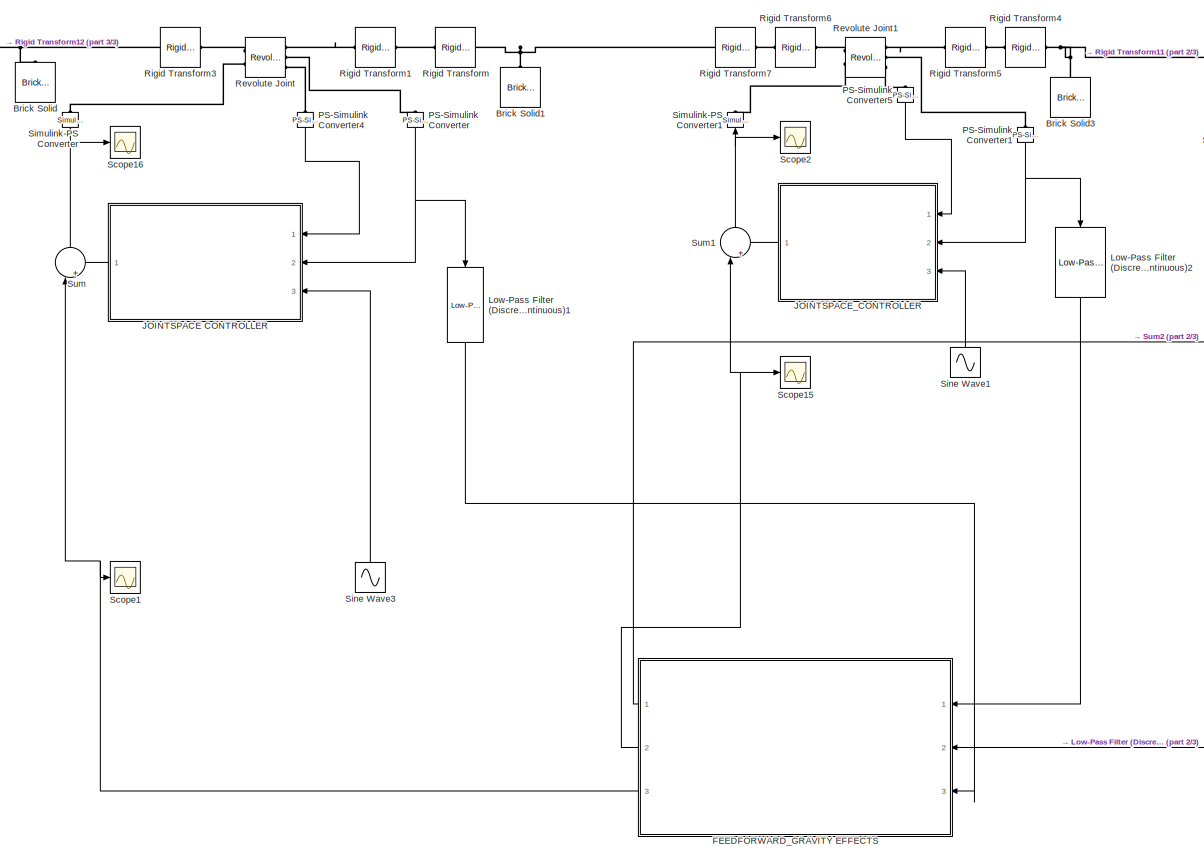
[diagram: arm1 - part 1/3, center side, full height]
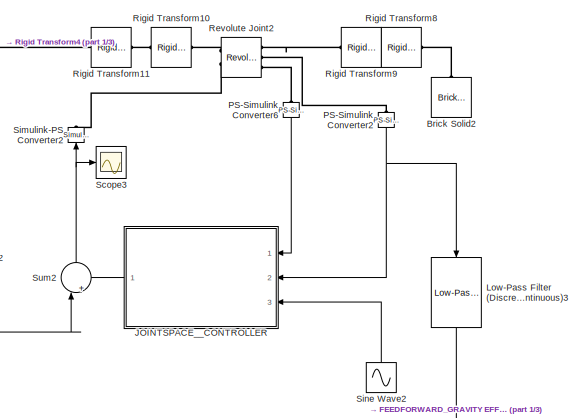
[diagram: arm1 - part 2/3, top right region]
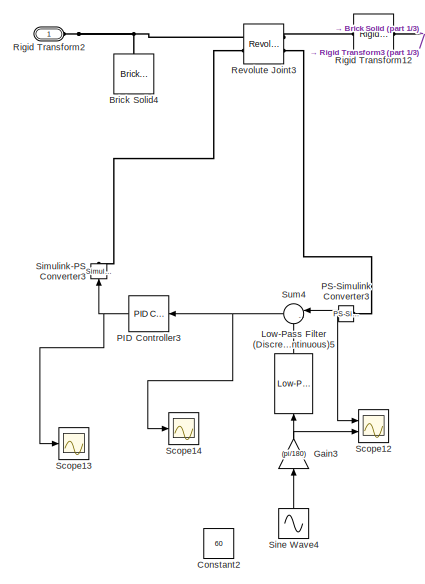
[diagram: arm1 - part 3/3, middle left region]
BLOCK [SubSystem] arm1
  Commented = on
  Ports = [0, 0, 0, 0, 0, 1]
  RequestExecContextInheritance = off
BLOCK [Reference] arm1/Brick Solid  REF=sm_lib/Body Elements/Brick Solid
  NameLocation = right
  Ports = [0, 0, 0, 0, 0, 0, 1]
  SourceBlock = sm_lib/Body Elements/Brick Solid
  SourceProductBaseCode = MS
  SourceType = Brick Solid
BLOCK [Reference] arm1/Brick Solid1  REF=sm_lib/Body Elements/Brick Solid
  NameLocation = right
  Ports = [0, 0, 0, 0, 0, 0, 1]
  SourceBlock = sm_lib/Body Elements/Brick Solid
  SourceProductBaseCode = MS
  SourceType = Brick Solid
BLOCK [Reference] arm1/Brick Solid2  REF=sm_lib/Body Elements/Brick Solid
  NameLocation = right
  Ports = [0, 0, 0, 0, 0, 0, 1]
  SourceBlock = sm_lib/Body Elements/Brick Solid
  SourceProductBaseCode = MS
  SourceType = Brick Solid
BLOCK [Reference] arm1/Brick Solid3  REF=sm_lib/Body Elements/Brick Solid
  NameLocation = right
  Ports = [0, 0, 0, 0, 0, 0, 1]
  SourceBlock = sm_lib/Body Elements/Brick Solid
  SourceProductBaseCode = MS
  SourceType = Brick Solid
BLOCK [Reference] arm1/Brick Solid4  REF=sm_lib/Body Elements/Brick Solid
  NameLocation = right
  Ports = [0, 0, 0, 0, 0, 0, 1]
  SourceBlock = sm_lib/Body Elements/Brick Solid
  SourceProductBaseCode = MS
  SourceType = Brick Solid
BLOCK [Constant] arm1/Constant2
  Value = 60
BLOCK [SubSystem] arm1/FEEDFORWARD_GRAVITY EFFECTS
  NameLocation = top
  Ports = [3, 3]
  RequestExecContextInheritance = off
BLOCK [SubSystem] arm1/FEEDFORWARD_GRAVITY EFFECTS/MATLAB Function
  ErrorFcn = Stateflow.Translate.translate
  NameLocation = top
  PermitHierarchicalResolution = ExplicitOnly
  Ports = [5, 1]
  RequestExecContextInheritance = off
  SFBlockType = MATLAB Function
  TreatAsAtomicUnit = on
BLOCK [Demux] arm1/FEEDFORWARD_GRAVITY EFFECTS/MATLAB Function/ Demux 
  Outputs = 1
  Ports = [1, 1]
BLOCK [S-Function] arm1/FEEDFORWARD_GRAVITY EFFECTS/MATLAB Function/ SFunction 
  EnableBusSupport = on
  FunctionName = sf_sfun
  PortCounts = [5 2]
  Ports = [5, 2]
  SFcnIsStateOwnerBlock = off
  SFunctionDeploymentMode = off
  Tag = Stateflow S-Function 6
BLOCK [Terminator] arm1/FEEDFORWARD_GRAVITY EFFECTS/MATLAB Function/ Terminator 
BLOCK [Outport] arm1/FEEDFORWARD_GRAVITY EFFECTS/MATLAB Function/T1
BLOCK [Inport] arm1/FEEDFORWARD_GRAVITY EFFECTS/MATLAB Function/Theta1
BLOCK [Inport] arm1/FEEDFORWARD_GRAVITY EFFECTS/MATLAB Function/alpa1
  Port = 2
BLOCK [Inport] arm1/FEEDFORWARD_GRAVITY EFFECTS/MATLAB Function/alpa2
  Port = 4
BLOCK [Inport] arm1/FEEDFORWARD_GRAVITY EFFECTS/MATLAB Function/r1
  Port = 3
BLOCK [Inport] arm1/FEEDFORWARD_GRAVITY EFFECTS/MATLAB Function/r2
  Port = 5
BLOCK [SubSystem] arm1/FEEDFORWARD_GRAVITY EFFECTS/MATLAB Function1
  ErrorFcn = Stateflow.Translate.translate
  NameLocation = top
  PermitHierarchicalResolution = ExplicitOnly
  Ports = [3, 5]
  RequestExecContextInheritance = off
  SFBlockType = MATLAB Function
  TreatAsAtomicUnit = on
BLOCK [Demux] arm1/FEEDFORWARD_GRAVITY EFFECTS/MATLAB Function1/ Demux 
  Outputs = 1
  Ports = [1, 1]
BLOCK [S-Function] arm1/FEEDFORWARD_GRAVITY EFFECTS/MATLAB Function1/ SFunction 
  EnableBusSupport = on
  FunctionName = sf_sfun
  PortCounts = [3 6]
  Ports = [3, 6]
  SFcnIsStateOwnerBlock = off
  SFunctionDeploymentMode = off
  Tag = Stateflow S-Function 7
BLOCK [Terminator] arm1/FEEDFORWARD_GRAVITY EFFECTS/MATLAB Function1/ Terminator 
BLOCK [Inport] arm1/FEEDFORWARD_GRAVITY EFFECTS/MATLAB Function1/Theta1
BLOCK [Outport] arm1/FEEDFORWARD_GRAVITY EFFECTS/MATLAB Function1/Theta11
BLOCK [Inport] arm1/FEEDFORWARD_GRAVITY EFFECTS/MATLAB Function1/Theta2
  Port = 2
BLOCK [Inport] arm1/FEEDFORWARD_GRAVITY EFFECTS/MATLAB Function1/Theta3
  Port = 3
BLOCK [Outport] arm1/FEEDFORWARD_GRAVITY EFFECTS/MATLAB Function1/alpa2
  Port = 4
BLOCK [Outport] arm1/FEEDFORWARD_GRAVITY EFFECTS/MATLAB Function1/alpha1
  Port = 2
BLOCK [Outport] arm1/FEEDFORWARD_GRAVITY EFFECTS/MATLAB Function1/r1
  Port = 3
BLOCK [Outport] arm1/FEEDFORWARD_GRAVITY EFFECTS/MATLAB Function1/r2
  Port = 5
BLOCK [SubSystem] arm1/FEEDFORWARD_GRAVITY EFFECTS/MATLAB Function2
  ErrorFcn = Stateflow.Translate.translate
  NameLocation = top
  PermitHierarchicalResolution = ExplicitOnly
  Ports = [3, 4]
  RequestExecContextInheritance = off
  SFBlockType = MATLAB Function
  TreatAsAtomicUnit = on
BLOCK [Demux] arm1/FEEDFORWARD_GRAVITY EFFECTS/MATLAB Function2/ Demux 
  Outputs = 1
  Ports = [1, 1]
BLOCK [S-Function] arm1/FEEDFORWARD_GRAVITY EFFECTS/MATLAB Function2/ SFunction 
  EnableBusSupport = on
  FunctionName = sf_sfun
  PortCounts = [3 5]
  Ports = [3, 5]
  SFcnIsStateOwnerBlock = off
  SFunctionDeploymentMode = off
  Tag = Stateflow S-Function 8
BLOCK [Terminator] arm1/FEEDFORWARD_GRAVITY EFFECTS/MATLAB Function2/ Terminator 
BLOCK [Inport] arm1/FEEDFORWARD_GRAVITY EFFECTS/MATLAB Function2/Theta1
BLOCK [Outport] arm1/FEEDFORWARD_GRAVITY EFFECTS/MATLAB Function2/Theta11
BLOCK [Inport] arm1/FEEDFORWARD_GRAVITY EFFECTS/MATLAB Function2/Theta2
  Port = 2
BLOCK [Outport] arm1/FEEDFORWARD_GRAVITY EFFECTS/MATLAB Function2/Theta22
  Port = 2
BLOCK [Inport] arm1/FEEDFORWARD_GRAVITY EFFECTS/MATLAB Function2/Theta3
  Port = 3
BLOCK [Outport] arm1/FEEDFORWARD_GRAVITY EFFECTS/MATLAB Function2/alfa
  Port = 3
BLOCK [Outport] arm1/FEEDFORWARD_GRAVITY EFFECTS/MATLAB Function2/r
  Port = 4
BLOCK [SubSystem] arm1/FEEDFORWARD_GRAVITY EFFECTS/MATLAB Function3
  ErrorFcn = Stateflow.Translate.translate
  NameLocation = top
  PermitHierarchicalResolution = ExplicitOnly
  Ports = [4, 1]
  RequestExecContextInheritance = off
  SFBlockType = MATLAB Function
  TreatAsAtomicUnit = on
BLOCK [Demux] arm1/FEEDFORWARD_GRAVITY EFFECTS/MATLAB Function3/ Demux 
  Outputs = 1
  Ports = [1, 1]
BLOCK [S-Function] arm1/FEEDFORWARD_GRAVITY EFFECTS/MATLAB Function3/ SFunction 
  EnableBusSupport = on
  FunctionName = sf_sfun
  PortCounts = [4 2]
  Ports = [4, 2]
  SFcnIsStateOwnerBlock = off
  SFunctionDeploymentMode = off
  Tag = Stateflow S-Function 9
BLOCK [Terminator] arm1/FEEDFORWARD_GRAVITY EFFECTS/MATLAB Function3/ Terminator 
BLOCK [Outport] arm1/FEEDFORWARD_GRAVITY EFFECTS/MATLAB Function3/T1
BLOCK [Inport] arm1/FEEDFORWARD_GRAVITY EFFECTS/MATLAB Function3/Theta1
BLOCK [Inport] arm1/FEEDFORWARD_GRAVITY EFFECTS/MATLAB Function3/Theta2
  Port = 2
BLOCK [Inport] arm1/FEEDFORWARD_GRAVITY EFFECTS/MATLAB Function3/alfa
  Port = 3
BLOCK [Inport] arm1/FEEDFORWARD_GRAVITY EFFECTS/MATLAB Function3/r
  Port = 4
BLOCK [SubSystem] arm1/FEEDFORWARD_GRAVITY EFFECTS/MATLAB Function4
  ErrorFcn = Stateflow.Translate.translate
  PermitHierarchicalResolution = ExplicitOnly
  Ports = [3, 1]
  RequestExecContextInheritance = off
  SFBlockType = MATLAB Function
  TreatAsAtomicUnit = on
BLOCK [Demux] arm1/FEEDFORWARD_GRAVITY EFFECTS/MATLAB Function4/ Demux 
  Outputs = 1
  Ports = [1, 1]
BLOCK [S-Function] arm1/FEEDFORWARD_GRAVITY EFFECTS/MATLAB Function4/ SFunction 
  EnableBusSupport = on
  FunctionName = sf_sfun
  PortCounts = [3 2]
  Ports = [3, 2]
  SFcnIsStateOwnerBlock = off
  SFunctionDeploymentMode = off
  Tag = Stateflow S-Function 10
BLOCK [Terminator] arm1/FEEDFORWARD_GRAVITY EFFECTS/MATLAB Function4/ Terminator 
BLOCK [Inport] arm1/FEEDFORWARD_GRAVITY EFFECTS/MATLAB Function4/theta1
BLOCK [Inport] arm1/FEEDFORWARD_GRAVITY EFFECTS/MATLAB Function4/theta2
  Port = 2
BLOCK [Inport] arm1/FEEDFORWARD_GRAVITY EFFECTS/MATLAB Function4/theta3
  Port = 3
BLOCK [Outport] arm1/FEEDFORWARD_GRAVITY EFFECTS/MATLAB Function4/y
BLOCK [Scope] arm1/FEEDFORWARD_GRAVITY EFFECTS/Scope10
  Floating = off
  NumInputPorts = 1
  Ports = [1]
  ScopeSpecificationString = Simulink.scopes.TimeScopeBlockCfg('CurrentConfiguration', extmgr.ConfigurationSet(extmgr.Configuration('Core','General UI',true),extmgr.Configuration('Core','Source UI',true),extmgr.Configuration('Sources','WiredSimulink',true,'DataLoggingVariableName','ScopeData3'),extmgr.Configuration('Visuals','Time Domain',true,'SerializedDisplays',{struct('MinYLimReal','-0.08716','MaxYLimReal','0.78411','YLab...<+1413ch>
BLOCK [Scope] arm1/FEEDFORWARD_GRAVITY EFFECTS/Scope11
  Floating = off
  NumInputPorts = 1
  Ports = [1]
  ScopeSpecificationString = Simulink.scopes.TimeScopeBlockCfg('CurrentConfiguration', extmgr.ConfigurationSet(extmgr.Configuration('Core','General UI',true),extmgr.Configuration('Core','Source UI',true),extmgr.Configuration('Sources','WiredSimulink',true,'DataLoggingVariableName','ScopeData4'),extmgr.Configuration('Visuals','Time Domain',true,'SerializedDisplays',{struct('MinYLimReal','-0.10489','MaxYLimReal','0.94401','YLab...<+1412ch>
BLOCK [Outport] arm1/FEEDFORWARD_GRAVITY EFFECTS/T1
  Port = 2
BLOCK [Outport] arm1/FEEDFORWARD_GRAVITY EFFECTS/T2
  Port = 3
BLOCK [Inport] arm1/FEEDFORWARD_GRAVITY EFFECTS/Theta1
  Port = 3
BLOCK [Inport] arm1/FEEDFORWARD_GRAVITY EFFECTS/Theta2
BLOCK [Inport] arm1/FEEDFORWARD_GRAVITY EFFECTS/Theta3
  Port = 2
BLOCK [Outport] arm1/FEEDFORWARD_GRAVITY EFFECTS/y
BLOCK [Gain] arm1/Gain3
  Gain = (pi/180)
  NameLocation = right
BLOCK [SubSystem] arm1/JOINTSPACE CONTROLLER
  NameLocation = top
  Ports = [3, 1]
  RequestExecContextInheritance = off
BLOCK [Derivative] arm1/JOINTSPACE CONTROLLER/Derivative
  NameLocation = top
BLOCK [Gain] arm1/JOINTSPACE CONTROLLER/Gain
  Gain = (pi/180)
  NameLocation = right
BLOCK [Gain] arm1/JOINTSPACE CONTROLLER/Gain1
  Gain = (pi/180)
  NameLocation = right
BLOCK [Inport] arm1/JOINTSPACE CONTROLLER/In1
BLOCK [Inport] arm1/JOINTSPACE CONTROLLER/In2
  Port = 2
BLOCK [Inport] arm1/JOINTSPACE CONTROLLER/In3
  Port = 3
BLOCK [Outport] arm1/JOINTSPACE CONTROLLER/Out1
BLOCK [Reference] arm1/JOINTSPACE CONTROLLER/PID Controller4  REF=pid_lib/PID Controller
  NameLocation = top
  Ports = [1, 1]
  SourceBlock = pid_lib/PID Controller
  SourceProductBaseCode = SL
  SourceType = PID 1dof
BLOCK [Saturate] arm1/JOINTSPACE CONTROLLER/Saturation
  LowerLimit = -50
  NameLocation = top
  UpperLimit = 50
BLOCK [Scope] arm1/JOINTSPACE CONTROLLER/Scope17
  Floating = off
  NameLocation = top
  NumInputPorts = 3
  Ports = [3]
  ScopeSpecificationString = Simulink.scopes.TimeScopeBlockCfg('CurrentConfiguration', extmgr.ConfigurationSet(extmgr.Configuration('Core','General UI',true),extmgr.Configuration('Core','Source UI',true),extmgr.Configuration('Sources','WiredSimulink',true,'DataLoggingVariableName','ScopeData8'),extmgr.Configuration('Visuals','Time Domain',true,'SerializedDisplays',{struct('MinYLimReal','-2.93839','MaxYLimReal','3.59591','YLab...<+1376ch>
BLOCK [Scope] arm1/JOINTSPACE CONTROLLER/Scope18
  Floating = off
  NumInputPorts = 1
  Ports = [1]
  ScopeSpecificationString = Simulink.scopes.TimeScopeBlockCfg('CurrentConfiguration', extmgr.ConfigurationSet(extmgr.Configuration('Core','General UI',true),extmgr.Configuration('Core','Source UI',true),extmgr.Configuration('Sources','WiredSimulink',true,'DataLoggingVariableName','ScopeData9'),extmgr.Configuration('Visuals','Time Domain',true),extmgr.Configuration('Tools','Plot Navigation',true),extmgr.Configuration('Tools',...<+40ch>
BLOCK [Scope] arm1/JOINTSPACE CONTROLLER/Scope9
  Floating = off
  NameLocation = top
  NumInputPorts = 3
  Ports = [3]
  ScopeSpecificationString = Simulink.scopes.TimeScopeBlockCfg('CurrentConfiguration', extmgr.ConfigurationSet(extmgr.Configuration('Core','General UI',true),extmgr.Configuration('Core','Source UI',true),extmgr.Configuration('Sources','WiredSimulink',true,'DataLoggingVariableName','ScopeData7'),extmgr.Configuration('Visuals','Time Domain',true),extmgr.Configuration('Tools','Plot Navigation',true),extmgr.Configuration('Tools',...<+40ch>
BLOCK [Sum] arm1/JOINTSPACE CONTROLLER/Sum3
  Inputs = |-+
  NameLocation = top
  Ports = [2, 1]
BLOCK [Sum] arm1/JOINTSPACE CONTROLLER/Sum5
  Inputs = |++
  NameLocation = top
  Ports = [2, 1]
BLOCK [Sum] arm1/JOINTSPACE CONTROLLER/Sum6
  Inputs = |-+
  NameLocation = top
  Ports = [2, 1]
BLOCK [SubSystem] arm1/JOINTSPACE_CONTROLLER
  NameLocation = top
  Ports = [3, 1]
  RequestExecContextInheritance = off
BLOCK [Derivative] arm1/JOINTSPACE_CONTROLLER/Derivative1
  NameLocation = top
BLOCK [Gain] arm1/JOINTSPACE_CONTROLLER/Gain2
  Gain = (pi/180)
  NameLocation = right
BLOCK [Gain] arm1/JOINTSPACE_CONTROLLER/Gain4
  Gain = (pi/180)
  NameLocation = right
BLOCK [Inport] arm1/JOINTSPACE_CONTROLLER/In1
BLOCK [Inport] arm1/JOINTSPACE_CONTROLLER/In2
  Port = 2
BLOCK [Inport] arm1/JOINTSPACE_CONTROLLER/In3
  Port = 3
BLOCK [Outport] arm1/JOINTSPACE_CONTROLLER/Out1
BLOCK [Reference] arm1/JOINTSPACE_CONTROLLER/PID Controller1  REF=pid_lib/PID Controller
  NameLocation = top
  Ports = [1, 1]
  SourceBlock = pid_lib/PID Controller
  SourceProductBaseCode = SL
  SourceType = PID 1dof
BLOCK [Saturate] arm1/JOINTSPACE_CONTROLLER/Saturation1
  LowerLimit = -50
  NameLocation = top
  UpperLimit = 50
BLOCK [Scope] arm1/JOINTSPACE_CONTROLLER/Scope6
  Floating = off
  NumInputPorts = 3
  Ports = [3]
  ScopeSpecificationString = Simulink.scopes.TimeScopeBlockCfg('CurrentConfiguration', extmgr.ConfigurationSet(extmgr.Configuration('Core','General UI',true),extmgr.Configuration('Core','Source UI',true),extmgr.Configuration('Sources','WiredSimulink',true,'DataLoggingVariableName','ScopeData4'),extmgr.Configuration('Visuals','Time Domain',true),extmgr.Configuration('Tools','Plot Navigation',true),extmgr.Configuration('Tools',...<+40ch>
BLOCK [Scope] arm1/JOINTSPACE_CONTROLLER/Scope7
  Floating = off
  NameLocation = top
  NumInputPorts = 3
  Ports = [3]
  ScopeSpecificationString = Simulink.scopes.TimeScopeBlockCfg('CurrentConfiguration', extmgr.ConfigurationSet(extmgr.Configuration('Core','General UI',true),extmgr.Configuration('Core','Source UI',true),extmgr.Configuration('Sources','WiredSimulink',true,'DataLoggingVariableName','ScopeData5'),extmgr.Configuration('Visuals','Time Domain',true,'SerializedDisplays',{struct('MinYLimReal','-6.95698','MaxYLimReal','5.73055','YLab...<+1377ch>
BLOCK [Scope] arm1/JOINTSPACE_CONTROLLER/Scope8
  Floating = off
  NumInputPorts = 1
  Ports = [1]
  ScopeSpecificationString = Simulink.scopes.TimeScopeBlockCfg('CurrentConfiguration', extmgr.ConfigurationSet(extmgr.Configuration('Core','General UI',true),extmgr.Configuration('Core','Source UI',true),extmgr.Configuration('Sources','WiredSimulink',true,'DataLoggingVariableName','ScopeData6'),extmgr.Configuration('Visuals','Time Domain',true,'SerializedDisplays',{struct('MinYLimReal','-5.9691','MaxYLimReal','5.04321','YLabe...<+1359ch>
BLOCK [Sum] arm1/JOINTSPACE_CONTROLLER/Sum7
  Inputs = |-+
  NameLocation = top
  Ports = [2, 1]
BLOCK [Sum] arm1/JOINTSPACE_CONTROLLER/Sum8
  Inputs = |++
  NameLocation = top
  Ports = [2, 1]
BLOCK [Sum] arm1/JOINTSPACE_CONTROLLER/Sum9
  Inputs = |-+
  NameLocation = top
  Ports = [2, 1]
BLOCK [SubSystem] arm1/JOINTSPACE__CONTROLLER
  NameLocation = top
  Ports = [3, 1]
  RequestExecContextInheritance = off
BLOCK [Derivative] arm1/JOINTSPACE__CONTROLLER/Derivative2
  NameLocation = top
BLOCK [Gain] arm1/JOINTSPACE__CONTROLLER/Gain5
  Gain = (pi/180)
  NameLocation = right
BLOCK [Gain] arm1/JOINTSPACE__CONTROLLER/Gain6
  Gain = (pi/180)
  NameLocation = right
BLOCK [Inport] arm1/JOINTSPACE__CONTROLLER/In1
BLOCK [Inport] arm1/JOINTSPACE__CONTROLLER/In2
  Port = 2
BLOCK [Inport] arm1/JOINTSPACE__CONTROLLER/In3
  Port = 3
BLOCK [Outport] arm1/JOINTSPACE__CONTROLLER/Out1
BLOCK [Reference] arm1/JOINTSPACE__CONTROLLER/PID Controller2  REF=pid_lib/PID Controller
  NameLocation = top
  Ports = [1, 1]
  SourceBlock = pid_lib/PID Controller
  SourceProductBaseCode = SL
  SourceType = PID 1dof
BLOCK [Saturate] arm1/JOINTSPACE__CONTROLLER/Saturation2
  LowerLimit = -50
  NameLocation = top
  UpperLimit = 50
BLOCK [Scope] arm1/JOINTSPACE__CONTROLLER/Scope
  Floating = off
  NumInputPorts = 3
  Ports = [3]
  ScopeSpecificationString = Simulink.scopes.TimeScopeBlockCfg('CurrentConfiguration', extmgr.ConfigurationSet(extmgr.Configuration('Core','General UI',true),extmgr.Configuration('Core','Source UI',true),extmgr.Configuration('Sources','WiredSimulink',true,'DataLoggingVariableName','ScopeData1'),extmgr.Configuration('Visuals','Time Domain',true,'SerializedDisplays',{struct('MinYLimReal','-1.27846','MaxYLimReal','0.79025','YLab...<+1410ch>
BLOCK [Scope] arm1/JOINTSPACE__CONTROLLER/Scope4
  Floating = off
  NameLocation = top
  NumInputPorts = 3
  Ports = [3]
  ScopeSpecificationString = Simulink.scopes.TimeScopeBlockCfg('CurrentConfiguration', extmgr.ConfigurationSet(extmgr.Configuration('Core','General UI',true),extmgr.Configuration('Core','Source UI',true),extmgr.Configuration('Sources','WiredSimulink',true,'DataLoggingVariableName','ScopeData2'),extmgr.Configuration('Visuals','Time Domain',true,'SerializedDisplays',{struct('MinYLimReal','-24.09735','MaxYLimReal','23.82395','YL...<+1384ch>
BLOCK [Scope] arm1/JOINTSPACE__CONTROLLER/Scope5
  Floating = off
  NumInputPorts = 1
  Ports = [1]
  ScopeSpecificationString = Simulink.scopes.TimeScopeBlockCfg('CurrentConfiguration', extmgr.ConfigurationSet(extmgr.Configuration('Core','General UI',true),extmgr.Configuration('Core','Source UI',true),extmgr.Configuration('Sources','WiredSimulink',true,'DataLoggingVariableName','ScopeData3'),extmgr.Configuration('Visuals','Time Domain',true,'SerializedDisplays',{struct('MinYLimReal','-0.69984','MaxYLimReal','0.60025','YLab...<+1364ch>
BLOCK [Sum] arm1/JOINTSPACE__CONTROLLER/Sum10
  Inputs = |-+
  NameLocation = top
  Ports = [2, 1]
BLOCK [Sum] arm1/JOINTSPACE__CONTROLLER/Sum11
  Inputs = |++
  NameLocation = top
  Ports = [2, 1]
BLOCK [Sum] arm1/JOINTSPACE__CONTROLLER/Sum12
  Inputs = |-+
  NameLocation = top
  Ports = [2, 1]
BLOCK [Reference] arm1/Low-Pass Filter (Discrete or Continuous)1  REF=eeGeneralControl/Low-Pass Filter
(Discrete or Continuous)
  NameLocation = left
  Ports = [1, 1]
  SourceBlock = eeGeneralControl/Low-Pass Filter\n(Discrete or Continuous)
  SourceProductBaseCode = PS
  SourceType = Low-Pass Filter (Discrete or Continuous)
BLOCK [Reference] arm1/Low-Pass Filter (Discrete or Continuous)2  REF=eeGeneralControl/Low-Pass Filter
(Discrete or Continuous)
  NameLocation = left
  Ports = [1, 1]
  SourceBlock = eeGeneralControl/Low-Pass Filter\n(Discrete or Continuous)
  SourceProductBaseCode = PS
  SourceType = Low-Pass Filter (Discrete or Continuous)
BLOCK [Reference] arm1/Low-Pass Filter (Discrete or Continuous)3  REF=eeGeneralControl/Low-Pass Filter
(Discrete or Continuous)
  NameLocation = left
  Ports = [1, 1]
  SourceBlock = eeGeneralControl/Low-Pass Filter\n(Discrete or Continuous)
  SourceProductBaseCode = PS
  SourceType = Low-Pass Filter (Discrete or Continuous)
BLOCK [Reference] arm1/Low-Pass Filter (Discrete or Continuous)5  REF=eeGeneralControl/Low-Pass Filter
(Discrete or Continuous)
  NameLocation = right
  Ports = [1, 1]
  SourceBlock = eeGeneralControl/Low-Pass Filter\n(Discrete or Continuous)
  SourceProductBaseCode = PS
  SourceType = Low-Pass Filter (Discrete or Continuous)
BLOCK [Reference] arm1/PID Controller3  REF=pid_lib/PID Controller
  NameLocation = top
  Ports = [1, 1]
  SourceBlock = pid_lib/PID Controller
  SourceProductBaseCode = SL
  SourceType = PID 1dof
BLOCK [Reference] arm1/PS-Simulink Converter  REF=nesl_utility/PS-Simulink
Converter
  NameLocation = left
  Ports = [0, 1, 0, 0, 0, 1]
  SourceBlock = nesl_utility/PS-Simulink\nConverter
  SourceProductBaseCode = SS
  SourceType = PS-Simulink\nConverter
BLOCK [Reference] arm1/PS-Simulink Converter1  REF=nesl_utility/PS-Simulink
Converter
  NameLocation = left
  Ports = [0, 1, 0, 0, 0, 1]
  SourceBlock = nesl_utility/PS-Simulink\nConverter
  SourceProductBaseCode = SS
  SourceType = PS-Simulink\nConverter
BLOCK [Reference] arm1/PS-Simulink Converter2  REF=nesl_utility/PS-Simulink
Converter
  NameLocation = left
  Ports = [0, 1, 0, 0, 0, 1]
  SourceBlock = nesl_utility/PS-Simulink\nConverter
  SourceProductBaseCode = SS
  SourceType = PS-Simulink\nConverter
BLOCK [Reference] arm1/PS-Simulink Converter3  REF=nesl_utility/PS-Simulink
Converter
  NameLocation = top
  Ports = [0, 1, 0, 0, 0, 1]
  SourceBlock = nesl_utility/PS-Simulink\nConverter
  SourceProductBaseCode = SS
  SourceType = PS-Simulink\nConverter
BLOCK [Reference] arm1/PS-Simulink Converter4  REF=nesl_utility/PS-Simulink
Converter
  NameLocation = left
  Ports = [0, 1, 0, 0, 0, 1]
  SourceBlock = nesl_utility/PS-Simulink\nConverter
  SourceProductBaseCode = SS
  SourceType = PS-Simulink\nConverter
BLOCK [Reference] arm1/PS-Simulink Converter5  REF=nesl_utility/PS-Simulink
Converter
  NameLocation = left
  Ports = [0, 1, 0, 0, 0, 1]
  SourceBlock = nesl_utility/PS-Simulink\nConverter
  SourceProductBaseCode = SS
  SourceType = PS-Simulink\nConverter
BLOCK [Reference] arm1/PS-Simulink Converter6  REF=nesl_utility/PS-Simulink
Converter
  NameLocation = left
  Ports = [0, 1, 0, 0, 0, 1]
  SourceBlock = nesl_utility/PS-Simulink\nConverter
  SourceProductBaseCode = SS
  SourceType = PS-Simulink\nConverter
BLOCK [Reference] arm1/Revolute Joint  REF=sm_lib/Joints/Revolute Joint
  Ports = [0, 0, 0, 0, 0, 2, 3]
  SourceBlock = sm_lib/Joints/Revolute Joint
  SourceProductBaseCode = MS
  SourceType = Revolute Joint
BLOCK [Reference] arm1/Revolute Joint1  REF=sm_lib/Joints/Revolute Joint
  Ports = [0, 0, 0, 0, 0, 2, 3]
  SourceBlock = sm_lib/Joints/Revolute Joint
  SourceProductBaseCode = MS
  SourceType = Revolute Joint
BLOCK [Reference] arm1/Revolute Joint2  REF=sm_lib/Joints/Revolute Joint
  Ports = [0, 0, 0, 0, 0, 2, 3]
  SourceBlock = sm_lib/Joints/Revolute Joint
  SourceProductBaseCode = MS
  SourceType = Revolute Joint
BLOCK [Reference] arm1/Revolute Joint3  REF=sm_lib/Joints/Revolute Joint
  Ports = [0, 0, 0, 0, 0, 2, 2]
  SourceBlock = sm_lib/Joints/Revolute Joint
  SourceProductBaseCode = MS
  SourceType = Revolute Joint
BLOCK [Reference] arm1/Rigid Transform  REF=sm_lib/Frames and
Transforms/Rigid
Transform
  Ports = [0, 0, 0, 0, 0, 1, 1]
  SourceBlock = sm_lib/Frames and\nTransforms/Rigid\nTransform
  SourceProductBaseCode = MS
  SourceType = Rigid\nTransform
BLOCK [Reference] arm1/Rigid Transform1  REF=sm_lib/Frames and
Transforms/Rigid
Transform
  Ports = [0, 0, 0, 0, 0, 1, 1]
  SourceBlock = sm_lib/Frames and\nTransforms/Rigid\nTransform
  SourceProductBaseCode = MS
  SourceType = Rigid\nTransform
BLOCK [Reference] arm1/Rigid Transform10  REF=sm_lib/Frames and
Transforms/Rigid
Transform
  Ports = [0, 0, 0, 0, 0, 1, 1]
  SourceBlock = sm_lib/Frames and\nTransforms/Rigid\nTransform
  SourceProductBaseCode = MS
  SourceType = Rigid\nTransform
BLOCK [Reference] arm1/Rigid Transform11  REF=sm_lib/Frames and
Transforms/Rigid
Transform
  Ports = [0, 0, 0, 0, 0, 1, 1]
  SourceBlock = sm_lib/Frames and\nTransforms/Rigid\nTransform
  SourceProductBaseCode = MS
  SourceType = Rigid\nTransform
BLOCK [Reference] arm1/Rigid Transform12  REF=sm_lib/Frames and
Transforms/Rigid
Transform
  Ports = [0, 0, 0, 0, 0, 1, 1]
  SourceBlock = sm_lib/Frames and\nTransforms/Rigid\nTransform
  SourceProductBaseCode = MS
  SourceType = Rigid\nTransform
BLOCK [PMIOPort] arm1/Rigid Transform2
  Side = Left
BLOCK [Reference] arm1/Rigid Transform3  REF=sm_lib/Frames and
Transforms/Rigid
Transform
  Ports = [0, 0, 0, 0, 0, 1, 1]
  SourceBlock = sm_lib/Frames and\nTransforms/Rigid\nTransform
  SourceProductBaseCode = MS
  SourceType = Rigid\nTransform
BLOCK [Reference] arm1/Rigid Transform4  REF=sm_lib/Frames and
Transforms/Rigid
Transform
  Ports = [0, 0, 0, 0, 0, 1, 1]
  SourceBlock = sm_lib/Frames and\nTransforms/Rigid\nTransform
  SourceProductBaseCode = MS
  SourceType = Rigid\nTransform
BLOCK [Reference] arm1/Rigid Transform5  REF=sm_lib/Frames and
Transforms/Rigid
Transform
  Ports = [0, 0, 0, 0, 0, 1, 1]
  SourceBlock = sm_lib/Frames and\nTransforms/Rigid\nTransform
  SourceProductBaseCode = MS
  SourceType = Rigid\nTransform
BLOCK [Reference] arm1/Rigid Transform6  REF=sm_lib/Frames and
Transforms/Rigid
Transform
  Ports = [0, 0, 0, 0, 0, 1, 1]
  SourceBlock = sm_lib/Frames and\nTransforms/Rigid\nTransform
  SourceProductBaseCode = MS
  SourceType = Rigid\nTransform
BLOCK [Reference] arm1/Rigid Transform7  REF=sm_lib/Frames and
Transforms/Rigid
Transform
  Ports = [0, 0, 0, 0, 0, 1, 1]
  SourceBlock = sm_lib/Frames and\nTransforms/Rigid\nTransform
  SourceProductBaseCode = MS
  SourceType = Rigid\nTransform
BLOCK [Reference] arm1/Rigid Transform8  REF=sm_lib/Frames and
Transforms/Rigid
Transform
  Ports = [0, 0, 0, 0, 0, 1, 1]
  SourceBlock = sm_lib/Frames and\nTransforms/Rigid\nTransform
  SourceProductBaseCode = MS
  SourceType = Rigid\nTransform
BLOCK [Reference] arm1/Rigid Transform9  REF=sm_lib/Frames and
Transforms/Rigid
Transform
  Ports = [0, 0, 0, 0, 0, 1, 1]
  SourceBlock = sm_lib/Frames and\nTransforms/Rigid\nTransform
  SourceProductBaseCode = MS
  SourceType = Rigid\nTransform
BLOCK [Scope] arm1/Scope1
  Floating = off
  NumInputPorts = 1
  Ports = [1]
  ScopeSpecificationString = Simulink.scopes.TimeScopeBlockCfg('CurrentConfiguration', extmgr.ConfigurationSet(extmgr.Configuration('Core','General UI',true),extmgr.Configuration('Core','Source UI',true),extmgr.Configuration('Sources','WiredSimulink',true,'DataLoggingVariableName','ScopeData1'),extmgr.Configuration('Visuals','Time Domain',true,'SerializedDisplays',{struct('MinYLimReal','-97.78907','MaxYLimReal','122.15234','Y...<+1461ch>
BLOCK [Scope] arm1/Scope12
  Floating = off
  NumInputPorts = 2
  Ports = [2]
  ScopeSpecificationString = Simulink.scopes.TimeScopeBlockCfg('CurrentConfiguration', extmgr.ConfigurationSet(extmgr.Configuration('Core','General UI',true),extmgr.Configuration('Core','Source UI',true),extmgr.Configuration('Sources','WiredSimulink',true,'DataLoggingVariableName','ScopeData2'),extmgr.Configuration('Visuals','Time Domain',true,'SerializedDisplays',{struct('MinYLimReal','-2.43164','MaxYLimReal','2.24908','YLab...<+1470ch>
BLOCK [Scope] arm1/Scope13
  Floating = off
  NumInputPorts = 1
  Ports = [1]
  ScopeSpecificationString = Simulink.scopes.TimeScopeBlockCfg('CurrentConfiguration', extmgr.ConfigurationSet(extmgr.Configuration('Core','General UI',true),extmgr.Configuration('Core','Source UI',true),extmgr.Configuration('Sources','WiredSimulink',true,'DataLoggingVariableName','ScopeData3'),extmgr.Configuration('Visuals','Time Domain',true,'SerializedDisplays',{struct('MinYLimReal','-105.42906','MaxYLimReal','1824.76918',...<+1442ch>
BLOCK [Scope] arm1/Scope14
  Floating = off
  NumInputPorts = 1
  Ports = [1]
  ScopeSpecificationString = Simulink.scopes.TimeScopeBlockCfg('CurrentConfiguration', extmgr.ConfigurationSet(extmgr.Configuration('Core','General UI',true),extmgr.Configuration('Core','Source UI',true),extmgr.Configuration('Sources','WiredSimulink',true,'DataLoggingVariableName','ScopeData4'),extmgr.Configuration('Visuals','Time Domain',true,'SerializedDisplays',{struct('MinYLimReal','-0.71157','MaxYLimReal','0.46619','YLab...<+1396ch>
BLOCK [Scope] arm1/Scope15
  Floating = off
  NumInputPorts = 1
  Ports = [1]
  ScopeSpecificationString = Simulink.scopes.TimeScopeBlockCfg('CurrentConfiguration', extmgr.ConfigurationSet(extmgr.Configuration('Core','General UI',true),extmgr.Configuration('Core','Source UI',true),extmgr.Configuration('Sources','WiredSimulink',true,'DataLoggingVariableName','ScopeData5'),extmgr.Configuration('Visuals','Time Domain',true,'SerializedDisplays',{struct('MinYLimReal','-84.16932','MaxYLimReal','58.59398','YL...<+1431ch>
BLOCK [Scope] arm1/Scope16
  Floating = off
  NumInputPorts = 1
  Ports = [1]
  ScopeSpecificationString = Simulink.scopes.TimeScopeBlockCfg('CurrentConfiguration', extmgr.ConfigurationSet(extmgr.Configuration('Core','General UI',true),extmgr.Configuration('Core','Source UI',true),extmgr.Configuration('Sources','WiredSimulink',true,'DataLoggingVariableName','ScopeData2'),extmgr.Configuration('Visuals','Time Domain',true,'SerializedDisplays',{struct('MinYLimReal','-55.10704','MaxYLimReal','94.41094','YL...<+1416ch>
BLOCK [Scope] arm1/Scope2
  Floating = off
  NumInputPorts = 1
  Ports = [1]
  ScopeSpecificationString = Simulink.scopes.TimeScopeBlockCfg('CurrentConfiguration', extmgr.ConfigurationSet(extmgr.Configuration('Core','General UI',true),extmgr.Configuration('Core','Source UI',true),extmgr.Configuration('Sources','WiredSimulink',true,'DataLoggingVariableName','ScopeData1'),extmgr.Configuration('Visuals','Time Domain',true,'SerializedDisplays',{struct('MinYLimReal','-19.29694','MaxYLimReal','21.51342','YL...<+1417ch>
BLOCK [Scope] arm1/Scope3
  Floating = off
  NumInputPorts = 1
  Ports = [1]
  ScopeSpecificationString = Simulink.scopes.TimeScopeBlockCfg('CurrentConfiguration', extmgr.ConfigurationSet(extmgr.Configuration('Core','General UI',true),extmgr.Configuration('Core','Source UI',true),extmgr.Configuration('Sources','WiredSimulink',true,'DataLoggingVariableName','ScopeData2'),extmgr.Configuration('Visuals','Time Domain',true,'SerializedDisplays',{struct('MinYLimReal','-46.30671','MaxYLimReal','146.9352','YL...<+1417ch>
BLOCK [Reference] arm1/Simulink-PS Converter  REF=nesl_utility/Simulink-PS
Converter
  NameLocation = right
  Ports = [1, 0, 0, 0, 0, 0, 1]
  SourceBlock = nesl_utility/Simulink-PS\nConverter
  SourceProductBaseCode = SS
  SourceType = Simulink-PS\nConverter
BLOCK [Reference] arm1/Simulink-PS Converter1  REF=nesl_utility/Simulink-PS
Converter
  NameLocation = right
  Ports = [1, 0, 0, 0, 0, 0, 1]
  SourceBlock = nesl_utility/Simulink-PS\nConverter
  SourceProductBaseCode = SS
  SourceType = Simulink-PS\nConverter
BLOCK [Reference] arm1/Simulink-PS Converter2  REF=nesl_utility/Simulink-PS
Converter
  NameLocation = right
  Ports = [1, 0, 0, 0, 0, 0, 1]
  SourceBlock = nesl_utility/Simulink-PS\nConverter
  SourceProductBaseCode = SS
  SourceType = Simulink-PS\nConverter
BLOCK [Reference] arm1/Simulink-PS Converter3  REF=nesl_utility/Simulink-PS
Converter
  NameLocation = right
  Ports = [1, 0, 0, 0, 0, 0, 1]
  SourceBlock = nesl_utility/Simulink-PS\nConverter
  SourceProductBaseCode = SS
  SourceType = Simulink-PS\nConverter
BLOCK [Sin] arm1/Sine Wave1
  Amplitude = 60
  Frequency = .1*6*pi
  NameLocation = right
  Phase = 10
  Ports = [0, 1]
  SampleTime = 0
BLOCK [Sin] arm1/Sine Wave2
  Amplitude = 60
  Frequency = .1*1*pi
  NameLocation = right
  Phase = 10
  Ports = [0, 1]
  SampleTime = 0
BLOCK [Sin] arm1/Sine Wave3
  Amplitude = 60
  Frequency = .1*2*pi
  NameLocation = right
  Ports = [0, 1]
  SampleTime = 0
BLOCK [Sin] arm1/Sine Wave4
  Amplitude = 60
  Frequency = .1*4*pi
  NameLocation = right
  Phase = 10
  Ports = [0, 1]
  SampleTime = 0
BLOCK [Sum] arm1/Sum
  Inputs = |++
  NameLocation = right
  Ports = [2, 1]
BLOCK [Sum] arm1/Sum1
  Inputs = |++
  NameLocation = right
  Ports = [2, 1]
BLOCK [Sum] arm1/Sum2
  Inputs = |++
  NameLocation = right
  Ports = [2, 1]
BLOCK [Sum] arm1/Sum4
  Inputs = |-+
  NameLocation = top
  Ports = [2, 1]
LINE arm/Constant2:1 -> arm/Gain3:1
LINE arm/Derivative1:1 -> arm/velocity_control:2
LINE arm/Derivative2:1 -> arm/Subsystem5:2
LINE arm/Derivative:1 -> arm/Subsystem3:2
NET arm/Gain3:1 -> arm/Low-Pass Filter (Discrete or Continuous)5:1, arm/Scope12:2
NET arm/JOINT1_FUNCTION:1 -> arm/Scope1:1, arm/Sum:1
LINE arm/JOINT3_FUNCTION:1 -> arm/Sum2:1
NET arm/Low-Pass Filter (Discrete or Continuous)1:1 -> arm/JOINT3_FUNCTION:1, arm/MAIN_FUNCTION1:1, arm/MATLAB Function2:1
NET arm/Low-Pass Filter (Discrete or Continuous)2:1 -> arm/JOINT3_FUNCTION:2, arm/MAIN_FUNCTION1:2, arm/MATLAB Function2:2
NET arm/Low-Pass Filter (Discrete or Continuous)3:1 -> arm/JOINT3_FUNCTION:3, arm/MAIN_FUNCTION1:3, arm/MATLAB Function2:3
LINE arm/Low-Pass Filter (Discrete or Continuous)5:1 -> arm/Sum4:2
LINE arm/MAIN_FUNCTION1:1 -> arm/JOINT1_FUNCTION:1
NET arm/MAIN_FUNCTION1:2 -> arm/JOINT1_FUNCTION:2, arm/Scope10:1
LINE arm/MAIN_FUNCTION1:3 -> arm/JOINT1_FUNCTION:3
NET arm/MAIN_FUNCTION1:4 -> arm/JOINT1_FUNCTION:4, arm/Scope11:1
LINE arm/MAIN_FUNCTION1:5 -> arm/JOINT1_FUNCTION:5
LINE arm/MATLAB Function2:1 -> arm/MATLAB Function3:1
LINE arm/MATLAB Function2:2 -> arm/MATLAB Function3:2
LINE arm/MATLAB Function2:3 -> arm/MATLAB Function3:3
LINE arm/MATLAB Function2:4 -> arm/MATLAB Function3:4
NET arm/MATLAB Function3:1 -> arm/Scope15:1, arm/Sum1:1
NET arm/PID Controller3:1 -> arm/Scope13:1, arm/Simulink-PS Converter3:1
NET arm/PS-Simulink Converter1:1 -> arm/Low-Pass Filter (Discrete or Continuous)2:1, arm/position_control:1
NET arm/PS-Simulink Converter2:1 -> arm/Low-Pass Filter (Discrete or Continuous)3:1, arm/Subsystem2:1
NET arm/PS-Simulink Converter3:1 -> arm/Scope12:1, arm/Sum4:1
LINE arm/PS-Simulink Converter4:1 -> arm/Subsystem3:1
LINE arm/PS-Simulink Converter5:1 -> arm/velocity_control:1
LINE arm/PS-Simulink Converter6:1 -> arm/Subsystem5:1
NET arm/PS-Simulink Converter:1 -> arm/Low-Pass Filter (Discrete or Continuous)1:1, arm/Subsystem:1
NET arm/Sine Wave1:1 -> arm/Derivative1:1, arm/position_control:2
NET arm/Sine Wave2:1 -> arm/Derivative2:1, arm/Subsystem2:2
NET arm/Sine Wave3:1 -> arm/Derivative:1, arm/Subsystem:2
NET arm/Subsystem/Gain:1 -> arm/Subsystem/Scope2:2, arm/Subsystem/Sum6:2
NET arm/Subsystem/In1:1 -> arm/Subsystem/Scope2:1, arm/Subsystem/Sum6:1
LINE arm/Subsystem/In2:1 -> arm/Subsystem/Gain:1
LINE arm/Subsystem/PID Controller4:1 -> arm/Subsystem/Saturation:1
NET arm/Subsystem/Saturation:1 -> arm/Subsystem/Out1:1, arm/Subsystem/Scope9:1
NET arm/Subsystem/Sum6:1 -> arm/Subsystem/PID Controller4:1, arm/Subsystem/Scope18:1
NET arm/Subsystem2/Gain2:1 -> arm/Subsystem2/Scope6:2, arm/Subsystem2/Sum2:2
NET arm/Subsystem2/In1:1 -> arm/Subsystem2/Scope6:1, arm/Subsystem2/Sum2:1
LINE arm/Subsystem2/In2:1 -> arm/Subsystem2/Gain2:1
NET arm/Subsystem2/PID Controller2:1 -> arm/Subsystem2/Scope7:1, arm/Subsystem2/y:1
NET arm/Subsystem2/Sum2:1 -> arm/Subsystem2/PID Controller2:1, arm/Subsystem2/Scope8:1
LINE arm/Subsystem2:1 -> arm/Sum2:3
NET arm/Subsystem3/Gain:1 -> arm/Subsystem3/Scope2:2, arm/Subsystem3/Sum6:2
NET arm/Subsystem3/In1:1 -> arm/Subsystem3/Scope2:1, arm/Subsystem3/Sum6:1
LINE arm/Subsystem3/In2:1 -> arm/Subsystem3/Gain:1
LINE arm/Subsystem3/PID Controller4:1 -> arm/Subsystem3/Saturation:1
NET arm/Subsystem3/Saturation:1 -> arm/Subsystem3/Out1:1, arm/Subsystem3/Scope9:1
NET arm/Subsystem3/Sum6:1 -> arm/Subsystem3/PID Controller4:1, arm/Subsystem3/Scope18:1
LINE arm/Subsystem3:1 -> arm/Sum:2
NET arm/Subsystem5/Gain2:1 -> arm/Subsystem5/Scope6:2, arm/Subsystem5/Sum2:2
NET arm/Subsystem5/In1:1 -> arm/Subsystem5/Scope6:1, arm/Subsystem5/Sum2:1
LINE arm/Subsystem5/In2:1 -> arm/Subsystem5/Gain2:1
NET arm/Subsystem5/PID Controller2:1 -> arm/Subsystem5/Scope7:1, arm/Subsystem5/y:1
NET arm/Subsystem5/Sum2:1 -> arm/Subsystem5/PID Controller2:1, arm/Subsystem5/Scope8:1
LINE arm/Subsystem5:1 -> arm/Sum2:2
LINE arm/Subsystem:1 -> arm/Sum:3
NET arm/Sum1:1 -> arm/Scope2:1, arm/Simulink-PS Converter1:1
NET arm/Sum2:1 -> arm/Scope3:1, arm/Simulink-PS Converter2:1
NET arm/Sum4:1 -> arm/PID Controller3:1, arm/Scope14:1
NET arm/Sum:1 -> arm/Scope16:1, arm/Simulink-PS Converter:1
LINE arm/position_control/Gain1:1 -> arm/position_control/Low-Pass Filter (Discrete or Continuous)7:1
NET arm/position_control/In1:1 -> arm/position_control/Scope3:1, arm/position_control/Sum1:1
LINE arm/position_control/In2:1 -> arm/position_control/Gain1:1
NET arm/position_control/Low-Pass Filter (Discrete or Continuous)7:1 -> arm/position_control/Scope3:2, arm/position_control/Sum1:2
NET arm/position_control/PID Controller1:1 -> arm/position_control/Saturation1:1, arm/position_control/Scope4:1
NET arm/position_control/Saturation1:1 -> arm/position_control/Out1:1, arm/position_control/Scope17:1
NET arm/position_control/Sum1:1 -> arm/position_control/PID Controller1:1, arm/position_control/Scope5:1
LINE arm/position_control:1 -> arm/Sum1:3
LINE arm/velocity_control/Gain1:1 -> arm/velocity_control/Low-Pass Filter (Discrete or Continuous)7:1
NET arm/velocity_control/In1:1 -> arm/velocity_control/Scope3:1, arm/velocity_control/Sum1:1
LINE arm/velocity_control/In2:1 -> arm/velocity_control/Gain1:1
NET arm/velocity_control/Low-Pass Filter (Discrete or Continuous)7:1 -> arm/velocity_control/Scope3:2, arm/velocity_control/Sum1:2
NET arm/velocity_control/PID Controller1:1 -> arm/velocity_control/Saturation1:1, arm/velocity_control/Scope4:1
NET arm/velocity_control/Saturation1:1 -> arm/velocity_control/Out1:1, arm/velocity_control/Scope17:1
NET arm/velocity_control/Sum1:1 -> arm/velocity_control/PID Controller1:1, arm/velocity_control/Scope5:1
LINE arm/velocity_control:1 -> arm/Sum1:2
LINE arm1/FEEDFORWARD_GRAVITY EFFECTS/MATLAB Function1:1 -> arm1/FEEDFORWARD_GRAVITY EFFECTS/MATLAB Function:1
NET arm1/FEEDFORWARD_GRAVITY EFFECTS/MATLAB Function1:2 -> arm1/FEEDFORWARD_GRAVITY EFFECTS/MATLAB Function:2, arm1/FEEDFORWARD_GRAVITY EFFECTS/Scope10:1
LINE arm1/FEEDFORWARD_GRAVITY EFFECTS/MATLAB Function1:3 -> arm1/FEEDFORWARD_GRAVITY EFFECTS/MATLAB Function:3
NET arm1/FEEDFORWARD_GRAVITY EFFECTS/MATLAB Function1:4 -> arm1/FEEDFORWARD_GRAVITY EFFECTS/MATLAB Function:4, arm1/FEEDFORWARD_GRAVITY EFFECTS/Scope11:1
LINE arm1/FEEDFORWARD_GRAVITY EFFECTS/MATLAB Function1:5 -> arm1/FEEDFORWARD_GRAVITY EFFECTS/MATLAB Function:5
LINE arm1/FEEDFORWARD_GRAVITY EFFECTS/MATLAB Function2:1 -> arm1/FEEDFORWARD_GRAVITY EFFECTS/MATLAB Function3:1
LINE arm1/FEEDFORWARD_GRAVITY EFFECTS/MATLAB Function2:2 -> arm1/FEEDFORWARD_GRAVITY EFFECTS/MATLAB Function3:2
LINE arm1/FEEDFORWARD_GRAVITY EFFECTS/MATLAB Function2:3 -> arm1/FEEDFORWARD_GRAVITY EFFECTS/MATLAB Function3:3
LINE arm1/FEEDFORWARD_GRAVITY EFFECTS/MATLAB Function2:4 -> arm1/FEEDFORWARD_GRAVITY EFFECTS/MATLAB Function3:4
LINE arm1/FEEDFORWARD_GRAVITY EFFECTS/MATLAB Function3:1 -> arm1/FEEDFORWARD_GRAVITY EFFECTS/T1:1
LINE arm1/FEEDFORWARD_GRAVITY EFFECTS/MATLAB Function4:1 -> arm1/FEEDFORWARD_GRAVITY EFFECTS/y:1
LINE arm1/FEEDFORWARD_GRAVITY EFFECTS/MATLAB Function:1 -> arm1/FEEDFORWARD_GRAVITY EFFECTS/T2:1
NET arm1/FEEDFORWARD_GRAVITY EFFECTS/Theta1:1 -> arm1/FEEDFORWARD_GRAVITY EFFECTS/MATLAB Function1:1, arm1/FEEDFORWARD_GRAVITY EFFECTS/MATLAB Function2:1, arm1/FEEDFORWARD_GRAVITY EFFECTS/MATLAB Function4:1
NET arm1/FEEDFORWARD_GRAVITY EFFECTS/Theta2:1 -> arm1/FEEDFORWARD_GRAVITY EFFECTS/MATLAB Function1:2, arm1/FEEDFORWARD_GRAVITY EFFECTS/MATLAB Function2:2, arm1/FEEDFORWARD_GRAVITY EFFECTS/MATLAB Function4:2
NET arm1/FEEDFORWARD_GRAVITY EFFECTS/Theta3:1 -> arm1/FEEDFORWARD_GRAVITY EFFECTS/MATLAB Function1:3, arm1/FEEDFORWARD_GRAVITY EFFECTS/MATLAB Function2:3, arm1/FEEDFORWARD_GRAVITY EFFECTS/MATLAB Function4:3
LINE arm1/FEEDFORWARD_GRAVITY EFFECTS:1 -> arm1/Sum2:1
NET arm1/FEEDFORWARD_GRAVITY EFFECTS:2 -> arm1/Scope15:1, arm1/Sum1:1
NET arm1/FEEDFORWARD_GRAVITY EFFECTS:3 -> arm1/Scope1:1, arm1/Sum:1
NET arm1/Gain3:1 -> arm1/Low-Pass Filter (Discrete or Continuous)5:1, arm1/Scope12:2
LINE arm1/JOINTSPACE CONTROLLER/Derivative:1 -> arm1/JOINTSPACE CONTROLLER/Gain:1
NET arm1/JOINTSPACE CONTROLLER/Gain1:1 -> arm1/JOINTSPACE CONTROLLER/Scope9:2, arm1/JOINTSPACE CONTROLLER/Sum3:2
NET arm1/JOINTSPACE CONTROLLER/Gain:1 -> arm1/JOINTSPACE CONTROLLER/Scope17:2, arm1/JOINTSPACE CONTROLLER/Sum6:2
NET arm1/JOINTSPACE CONTROLLER/In1:1 -> arm1/JOINTSPACE CONTROLLER/Scope17:3, arm1/JOINTSPACE CONTROLLER/Sum6:1
NET arm1/JOINTSPACE CONTROLLER/In2:1 -> arm1/JOINTSPACE CONTROLLER/Scope9:1, arm1/JOINTSPACE CONTROLLER/Sum3:1
NET arm1/JOINTSPACE CONTROLLER/In3:1 -> arm1/JOINTSPACE CONTROLLER/Derivative:1, arm1/JOINTSPACE CONTROLLER/Gain1:1
LINE arm1/JOINTSPACE CONTROLLER/PID Controller4:1 -> arm1/JOINTSPACE CONTROLLER/Saturation:1
LINE arm1/JOINTSPACE CONTROLLER/Saturation:1 -> arm1/JOINTSPACE CONTROLLER/Out1:1
NET arm1/JOINTSPACE CONTROLLER/Sum3:1 -> arm1/JOINTSPACE CONTROLLER/Scope9:3, arm1/JOINTSPACE CONTROLLER/Sum5:1
NET arm1/JOINTSPACE CONTROLLER/Sum5:1 -> arm1/JOINTSPACE CONTROLLER/PID Controller4:1, arm1/JOINTSPACE CONTROLLER/Scope18:1
NET arm1/JOINTSPACE CONTROLLER/Sum6:1 -> arm1/JOINTSPACE CONTROLLER/Scope17:1, arm1/JOINTSPACE CONTROLLER/Sum5:2
LINE arm1/JOINTSPACE CONTROLLER:1 -> arm1/Sum:2
LINE arm1/JOINTSPACE_CONTROLLER/Derivative1:1 -> arm1/JOINTSPACE_CONTROLLER/Gain2:1
NET arm1/JOINTSPACE_CONTROLLER/Gain2:1 -> arm1/JOINTSPACE_CONTROLLER/Scope7:2, arm1/JOINTSPACE_CONTROLLER/Sum9:2
NET arm1/JOINTSPACE_CONTROLLER/Gain4:1 -> arm1/JOINTSPACE_CONTROLLER/Scope6:3, arm1/JOINTSPACE_CONTROLLER/Sum7:2
NET arm1/JOINTSPACE_CONTROLLER/In1:1 -> arm1/JOINTSPACE_CONTROLLER/Scope7:3, arm1/JOINTSPACE_CONTROLLER/Sum9:1
NET arm1/JOINTSPACE_CONTROLLER/In2:1 -> arm1/JOINTSPACE_CONTROLLER/Scope6:2, arm1/JOINTSPACE_CONTROLLER/Sum7:1
NET arm1/JOINTSPACE_CONTROLLER/In3:1 -> arm1/JOINTSPACE_CONTROLLER/Derivative1:1, arm1/JOINTSPACE_CONTROLLER/Gain4:1
LINE arm1/JOINTSPACE_CONTROLLER/PID Controller1:1 -> arm1/JOINTSPACE_CONTROLLER/Saturation1:1
LINE arm1/JOINTSPACE_CONTROLLER/Saturation1:1 -> arm1/JOINTSPACE_CONTROLLER/Out1:1
NET arm1/JOINTSPACE_CONTROLLER/Sum7:1 -> arm1/JOINTSPACE_CONTROLLER/Scope6:1, arm1/JOINTSPACE_CONTROLLER/Sum8:1
NET arm1/JOINTSPACE_CONTROLLER/Sum8:1 -> arm1/JOINTSPACE_CONTROLLER/PID Controller1:1, arm1/JOINTSPACE_CONTROLLER/Scope8:1
NET arm1/JOINTSPACE_CONTROLLER/Sum9:1 -> arm1/JOINTSPACE_CONTROLLER/Scope7:1, arm1/JOINTSPACE_CONTROLLER/Sum8:2
LINE arm1/JOINTSPACE_CONTROLLER:1 -> arm1/Sum1:2
LINE arm1/JOINTSPACE__CONTROLLER/Derivative2:1 -> arm1/JOINTSPACE__CONTROLLER/Gain5:1
NET arm1/JOINTSPACE__CONTROLLER/Gain5:1 -> arm1/JOINTSPACE__CONTROLLER/Scope4:3, arm1/JOINTSPACE__CONTROLLER/Sum12:2
NET arm1/JOINTSPACE__CONTROLLER/Gain6:1 -> arm1/JOINTSPACE__CONTROLLER/Scope:3, arm1/JOINTSPACE__CONTROLLER/Sum10:2
NET arm1/JOINTSPACE__CONTROLLER/In1:1 -> arm1/JOINTSPACE__CONTROLLER/Scope4:1, arm1/JOINTSPACE__CONTROLLER/Sum12:1
NET arm1/JOINTSPACE__CONTROLLER/In2:1 -> arm1/JOINTSPACE__CONTROLLER/Scope:2, arm1/JOINTSPACE__CONTROLLER/Sum10:1
NET arm1/JOINTSPACE__CONTROLLER/In3:1 -> arm1/JOINTSPACE__CONTROLLER/Derivative2:1, arm1/JOINTSPACE__CONTROLLER/Gain6:1
LINE arm1/JOINTSPACE__CONTROLLER/PID Controller2:1 -> arm1/JOINTSPACE__CONTROLLER/Saturation2:1
LINE arm1/JOINTSPACE__CONTROLLER/Saturation2:1 -> arm1/JOINTSPACE__CONTROLLER/Out1:1
NET arm1/JOINTSPACE__CONTROLLER/Sum10:1 -> arm1/JOINTSPACE__CONTROLLER/Scope:1, arm1/JOINTSPACE__CONTROLLER/Sum11:1
NET arm1/JOINTSPACE__CONTROLLER/Sum11:1 -> arm1/JOINTSPACE__CONTROLLER/PID Controller2:1, arm1/JOINTSPACE__CONTROLLER/Scope5:1
LINE arm1/JOINTSPACE__CONTROLLER/Sum12:1 -> arm1/JOINTSPACE__CONTROLLER/Scope4:2
LINE arm1/JOINTSPACE__CONTROLLER:1 -> arm1/Sum2:2
LINE arm1/Low-Pass Filter (Discrete or Continuous)1:1 -> arm1/FEEDFORWARD_GRAVITY EFFECTS:3
LINE arm1/Low-Pass Filter (Discrete or Continuous)2:1 -> arm1/FEEDFORWARD_GRAVITY EFFECTS:1
LINE arm1/Low-Pass Filter (Discrete or Continuous)3:1 -> arm1/FEEDFORWARD_GRAVITY EFFECTS:2
LINE arm1/Low-Pass Filter (Discrete or Continuous)5:1 -> arm1/Sum4:2
NET arm1/PID Controller3:1 -> arm1/Scope13:1, arm1/Simulink-PS Converter3:1
NET arm1/PS-Simulink Converter1:1 -> arm1/JOINTSPACE_CONTROLLER:2, arm1/Low-Pass Filter (Discrete or Continuous)2:1
NET arm1/PS-Simulink Converter2:1 -> arm1/JOINTSPACE__CONTROLLER:2, arm1/Low-Pass Filter (Discrete or Continuous)3:1
NET arm1/PS-Simulink Converter3:1 -> arm1/Scope12:1, arm1/Sum4:1
LINE arm1/PS-Simulink Converter4:1 -> arm1/JOINTSPACE CONTROLLER:1
LINE arm1/PS-Simulink Converter5:1 -> arm1/JOINTSPACE_CONTROLLER:1
LINE arm1/PS-Simulink Converter6:1 -> arm1/JOINTSPACE__CONTROLLER:1
NET arm1/PS-Simulink Converter:1 -> arm1/JOINTSPACE CONTROLLER:2, arm1/Low-Pass Filter (Discrete or Continuous)1:1
LINE arm1/Sine Wave1:1 -> arm1/JOINTSPACE_CONTROLLER:3
LINE arm1/Sine Wave2:1 -> arm1/JOINTSPACE__CONTROLLER:3
LINE arm1/Sine Wave3:1 -> arm1/JOINTSPACE CONTROLLER:3
LINE arm1/Sine Wave4:1 -> arm1/Gain3:1
NET arm1/Sum1:1 -> arm1/Scope2:1, arm1/Simulink-PS Converter1:1
NET arm1/Sum2:1 -> arm1/Scope3:1, arm1/Simulink-PS Converter2:1
NET arm1/Sum4:1 -> arm1/PID Controller3:1, arm1/Scope14:1
NET arm1/Sum:1 -> arm1/Scope16:1, arm1/Simulink-PS Converter:1
PNET net1: Subsystem1/Mechanism Configuration1:RConn1 -- Subsystem1/Mechanism Configuration:RConn1 -- Subsystem1/Solver Configuration:RConn1 -- Subsystem1/World Frame:RConn1
PLINE Subsystem1:RConn1 -- arm:LConn1
PNET net2: Subsystem2/Mechanism Configuration1:RConn1 -- Subsystem2/Mechanism Configuration:RConn1 -- Subsystem2/Solver Configuration:RConn1 -- Subsystem2/World Frame:RConn1
PLINE Subsystem2:RConn1 -- arm1:LConn1
PNET net3: arm/Brick Solid1:RConn1 -- arm/Rigid Transform7:LConn1 -- arm/Rigid Transform:RConn1
PLINE arm/Brick Solid2:RConn1 -- arm/Rigid Transform8:RConn1
PNET net4: arm/Brick Solid3:RConn1 -- arm/Rigid Transform11:LConn1 -- arm/Rigid Transform4:RConn1
PNET net5: arm/Brick Solid4:RConn1 -- arm/Revolute Joint3:LConn1 -- arm/Rigid Transform2:RConn1
PNET net6: arm/Brick Solid:RConn1 -- arm/Rigid Transform12:RConn1 -- arm/Rigid Transform3:LConn1
PLINE arm/PS-Simulink Converter1:LConn1 -- arm/Revolute Joint1:RConn2
PLINE arm/PS-Simulink Converter2:LConn1 -- arm/Revolute Joint2:RConn2
PLINE arm/PS-Simulink Converter3:LConn1 -- arm/Revolute Joint3:RConn2
PLINE arm/PS-Simulink Converter4:LConn1 -- arm/Revolute Joint:RConn3
PLINE arm/PS-Simulink Converter5:LConn1 -- arm/Revolute Joint1:RConn3
PLINE arm/PS-Simulink Converter6:LConn1 -- arm/Revolute Joint2:RConn3
PLINE arm/PS-Simulink Converter:LConn1 -- arm/Revolute Joint:RConn2
PLINE arm/Revolute Joint1:LConn1 -- arm/Rigid Transform6:RConn1
PLINE arm/Revolute Joint1:LConn2 -- arm/Simulink-PS Converter1:RConn1
PLINE arm/Revolute Joint1:RConn1 -- arm/Rigid Transform5:LConn1
PLINE arm/Revolute Joint2:LConn1 -- arm/Rigid Transform10:RConn1
PLINE arm/Revolute Joint2:LConn2 -- arm/Simulink-PS Converter2:RConn1
PLINE arm/Revolute Joint2:RConn1 -- arm/Rigid Transform9:LConn1
PLINE arm/Revolute Joint3:LConn2 -- arm/Simulink-PS Converter3:RConn1
PLINE arm/Revolute Joint3:RConn1 -- arm/Rigid Transform12:LConn1
PLINE arm/Revolute Joint:LConn1 -- arm/Rigid Transform3:RConn1
PLINE arm/Revolute Joint:LConn2 -- arm/Simulink-PS Converter:RConn1
PLINE arm/Revolute Joint:RConn1 -- arm/Rigid Transform1:LConn1
PLINE arm/Rigid Transform10:LConn1 -- arm/Rigid Transform11:RConn1
PLINE arm/Rigid Transform1:RConn1 -- arm/Rigid Transform:LConn1
PLINE arm/Rigid Transform4:LConn1 -- arm/Rigid Transform5:RConn1
PLINE arm/Rigid Transform6:LConn1 -- arm/Rigid Transform7:RConn1
PLINE arm/Rigid Transform8:LConn1 -- arm/Rigid Transform9:RConn1
PNET net7: arm1/Brick Solid1:RConn1 -- arm1/Rigid Transform7:LConn1 -- arm1/Rigid Transform:RConn1
PLINE arm1/Brick Solid2:RConn1 -- arm1/Rigid Transform8:RConn1
PNET net8: arm1/Brick Solid3:RConn1 -- arm1/Rigid Transform11:LConn1 -- arm1/Rigid Transform4:RConn1
PNET net9: arm1/Brick Solid4:RConn1 -- arm1/Revolute Joint3:LConn1 -- arm1/Rigid Transform2:RConn1
PNET net10: arm1/Brick Solid:RConn1 -- arm1/Rigid Transform12:RConn1 -- arm1/Rigid Transform3:LConn1
PLINE arm1/PS-Simulink Converter1:LConn1 -- arm1/Revolute Joint1:RConn2
PLINE arm1/PS-Simulink Converter2:LConn1 -- arm1/Revolute Joint2:RConn2
PLINE arm1/PS-Simulink Converter3:LConn1 -- arm1/Revolute Joint3:RConn2
PLINE arm1/PS-Simulink Converter4:LConn1 -- arm1/Revolute Joint:RConn3
PLINE arm1/PS-Simulink Converter5:LConn1 -- arm1/Revolute Joint1:RConn3
PLINE arm1/PS-Simulink Converter6:LConn1 -- arm1/Revolute Joint2:RConn3
PLINE arm1/PS-Simulink Converter:LConn1 -- arm1/Revolute Joint:RConn2
PLINE arm1/Revolute Joint1:LConn1 -- arm1/Rigid Transform6:RConn1
PLINE arm1/Revolute Joint1:LConn2 -- arm1/Simulink-PS Converter1:RConn1
PLINE arm1/Revolute Joint1:RConn1 -- arm1/Rigid Transform5:LConn1
PLINE arm1/Revolute Joint2:LConn1 -- arm1/Rigid Transform10:RConn1
PLINE arm1/Revolute Joint2:LConn2 -- arm1/Simulink-PS Converter2:RConn1
PLINE arm1/Revolute Joint2:RConn1 -- arm1/Rigid Transform9:LConn1
PLINE arm1/Revolute Joint3:LConn2 -- arm1/Simulink-PS Converter3:RConn1
PLINE arm1/Revolute Joint3:RConn1 -- arm1/Rigid Transform12:LConn1
PLINE arm1/Revolute Joint:LConn1 -- arm1/Rigid Transform3:RConn1
PLINE arm1/Revolute Joint:LConn2 -- arm1/Simulink-PS Converter:RConn1
PLINE arm1/Revolute Joint:RConn1 -- arm1/Rigid Transform1:LConn1
PLINE arm1/Rigid Transform10:LConn1 -- arm1/Rigid Transform11:RConn1
PLINE arm1/Rigid Transform1:RConn1 -- arm1/Rigid Transform:LConn1
PLINE arm1/Rigid Transform4:LConn1 -- arm1/Rigid Transform5:RConn1
PLINE arm1/Rigid Transform6:LConn1 -- arm1/Rigid Transform7:RConn1
PLINE arm1/Rigid Transform8:LConn1 -- arm1/Rigid Transform9:RConn1
note: NET lines group one-source signal fan-out (src -> all destinations, sorted); 1:1 wires keep LINE; PNET lines group multi-terminal physical nets as a canonical sorted terminal list (undirected conserving connections); 2-terminal nets keep the pairwise PLINE form
CHART arm1/FEEDFORWARD_GRAVITY EFFECTS/MATLAB Function3 states=1 transitions=1
  STATE_LABEL 'eML_blk_kernel()'
  STATE_LABEL 'SCRIPT:\nfunction T1 = fcn(Theta1, Theta2,alfa,r)\n%int m = 1;         % mass of each block m = 1 Kg\n%int L = 1;         % length of each block L = 1 m \n%int g = 9.80665;   % gravitional const g \n%int x1 = sin(Theta1) + (sin(Theta1 + Theta2))/2 ;\n%int y1 = cos(Theta1) + (cos(Theta1 + Theta2))/2 ;\n%int x2 = sin(Theta1) + sin(Theta1 + Theta2) + sin(Theta1 + Theta2 + Theta3)/2 ;\n%int y2 = cos(Theta1) +...<+113ch>'
CHART arm1/FEEDFORWARD_GRAVITY EFFECTS/MATLAB Function4 states=1 transitions=1
  STATE_LABEL 'eML_blk_kernel()'
  STATE_LABEL 'SCRIPT:\nfunction y = fcn(theta1,theta2,theta3)\n\ny = 1.2*cos(theta1+theta2+theta3)*.5*10;\nend \n\n'
CHART arm/MAIN_FUNCTION1 states=1 transitions=1
  STATE_LABEL 'eML_blk_kernel()'
  STATE_LABEL 'SCRIPT:\nfunction [Theta11, alpha1, r1, alpa2, r2]= fcn(Theta1, Theta2, Theta3)\n\nTheta11 = Theta1;\nalpha1 = atan((2*sin(Theta1) + sin(Theta1 + Theta2))/(2*cos(Theta1) + cos(Theta1 + Theta2)));\nr1 = sqrt((sin(Theta1) + (sin(Theta1 + Theta2))/2)^2  + (cos(Theta1) + (cos(Theta1 + Theta2))/2)^2);\nalpa2 = atan((2*sin(Theta1) + 2*sin(Theta1 + Theta2) + sin(Theta1 + Theta2 + Theta3))/(2*cos(Theta1) + 2*co...<+218ch>'
CHART arm/JOINT1_FUNCTION states=1 transitions=1
  STATE_LABEL 'eML_blk_kernel()'
  STATE_LABEL 'SCRIPT:\nfunction T1 = fcn(Theta1, alpa1,r1, alpa2,r2)\n%int m = 1;         % mass of each block m = 1 Kg\n%int L = 1;         % length of each block L = 1 m \n%int g = 9.80665;   % gravitional const g \n%int x1 = sin(Theta1) + (sin(Theta1 + Theta2))/2 ;\n%int y1 = cos(Theta1) + (cos(Theta1 + Theta2))/2 ;\n%int x2 = sin(Theta1) + sin(Theta1 + Theta2) + sin(Theta1 + Theta2 + Theta3)/2 ;\n%int y2 = cos(Thet...<+127ch>'
CHART arm/MATLAB Function2 states=1 transitions=1
  STATE_LABEL 'eML_blk_kernel()'
  STATE_LABEL 'SCRIPT:\nfunction [Theta11,Theta22,alfa,r]= fcn(Theta1, Theta2, Theta3)\n\nTheta11 = Theta1;\nTheta22 = Theta2;\nalfa = atan(( 2*sin(Theta1 + Theta2) + sin(Theta1 + Theta2 + Theta3))/( 2*cos(Theta1 + Theta2) + cos(Theta1 + Theta2 + Theta3)));\nr = sqrt(( sin(Theta1 + Theta2) + sin(Theta1 + Theta2 + Theta3)/2)^2  +  ( cos(Theta1 + Theta2) + cos(Theta1 + Theta2 + Theta3)/2)^2 );\n'
CHART arm/MATLAB Function3 states=1 transitions=1
  STATE_LABEL 'eML_blk_kernel()'
  STATE_LABEL 'SCRIPT:\nfunction T1 = fcn(Theta1, Theta2,alfa,r)\n%int m = 1;         % mass of each block m = 1 Kg\n%int L = 1;         % length of each block L = 1 m \n%int g = 9.80665;   % gravitional const g \n%int x1 = sin(Theta1) + (sin(Theta1 + Theta2))/2 ;\n%int y1 = cos(Theta1) + (cos(Theta1 + Theta2))/2 ;\n%int x2 = sin(Theta1) + sin(Theta1 + Theta2) + sin(Theta1 + Theta2 + Theta3)/2 ;\n%int y2 = cos(Theta1) +...<+113ch>'
CHART arm/JOINT3_FUNCTION states=1 transitions=1
  STATE_LABEL 'eML_blk_kernel()'
  STATE_LABEL 'SCRIPT:\nfunction y = fcn(theta1,theta2,theta3)\n\ny = 1.2*cos(theta1+theta2+theta3)*.5*10;\nend \n\n'
CHART arm1/FEEDFORWARD_GRAVITY EFFECTS/MATLAB Function states=1 transitions=1
  STATE_LABEL 'eML_blk_kernel()'
  STATE_LABEL 'SCRIPT:\nfunction T1 = fcn(Theta1, alpa1,r1, alpa2,r2)\n%int m = 1;         % mass of each block m = 1 Kg\n%int L = 1;         % length of each block L = 1 m \n%int g = 9.80665;   % gravitional const g \n%int x1 = sin(Theta1) + (sin(Theta1 + Theta2))/2 ;\n%int y1 = cos(Theta1) + (cos(Theta1 + Theta2))/2 ;\n%int x2 = sin(Theta1) + sin(Theta1 + Theta2) + sin(Theta1 + Theta2 + Theta3)/2 ;\n%int y2 = cos(Thet...<+127ch>'
CHART arm1/FEEDFORWARD_GRAVITY EFFECTS/MATLAB Function1 states=1 transitions=1
  STATE_LABEL 'eML_blk_kernel()'
  STATE_LABEL 'SCRIPT:\nfunction [Theta11, alpha1, r1, alpa2, r2]= fcn(Theta1, Theta2, Theta3)\n\nTheta11 = Theta1;\nalpha1 = atan((2*sin(Theta1) + sin(Theta1 + Theta2))/(2*cos(Theta1) + cos(Theta1 + Theta2)));\nr1 = sqrt((sin(Theta1) + (sin(Theta1 + Theta2))/2)^2  + (cos(Theta1) + (cos(Theta1 + Theta2))/2)^2);\nalpa2 = atan((2*sin(Theta1) + 2*sin(Theta1 + Theta2) + sin(Theta1 + Theta2 + Theta3))/(2*cos(Theta1) + 2*co...<+218ch>'
CHART arm1/FEEDFORWARD_GRAVITY EFFECTS/MATLAB Function2 states=1 transitions=1
  STATE_LABEL 'eML_blk_kernel()'
  STATE_LABEL 'SCRIPT:\nfunction [Theta11,Theta22,alfa,r]= fcn(Theta1, Theta2, Theta3)\n\nTheta11 = Theta1;\nTheta22 = Theta2;\nalfa = atan(( 2*sin(Theta1 + Theta2) + sin(Theta1 + Theta2 + Theta3))/( 2*cos(Theta1 + Theta2) + cos(Theta1 + Theta2 + Theta3)));\nr = sqrt(( sin(Theta1 + Theta2) + sin(Theta1 + Theta2 + Theta3)/2)^2  +  ( cos(Theta1 + Theta2) + cos(Theta1 + Theta2 + Theta3)/2)^2 );\n'
CHART  states=0 transitions=0
CHART  states=0 transitions=0
CHART  states=0 transitions=0
CHART  states=0 transitions=0
CHART  states=0 transitions=0
CHART  states=0 transitions=0
CHART  states=0 transitions=0
CHART  states=0 transitions=0
CHART  states=0 transitions=0
CHART  states=0 transitions=0
